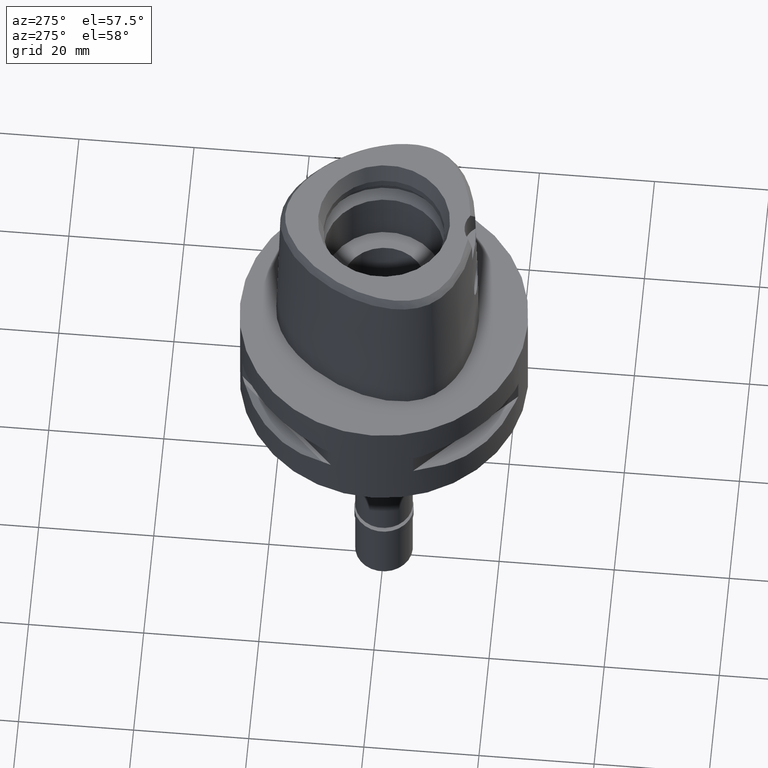
[diagram: clean part render]
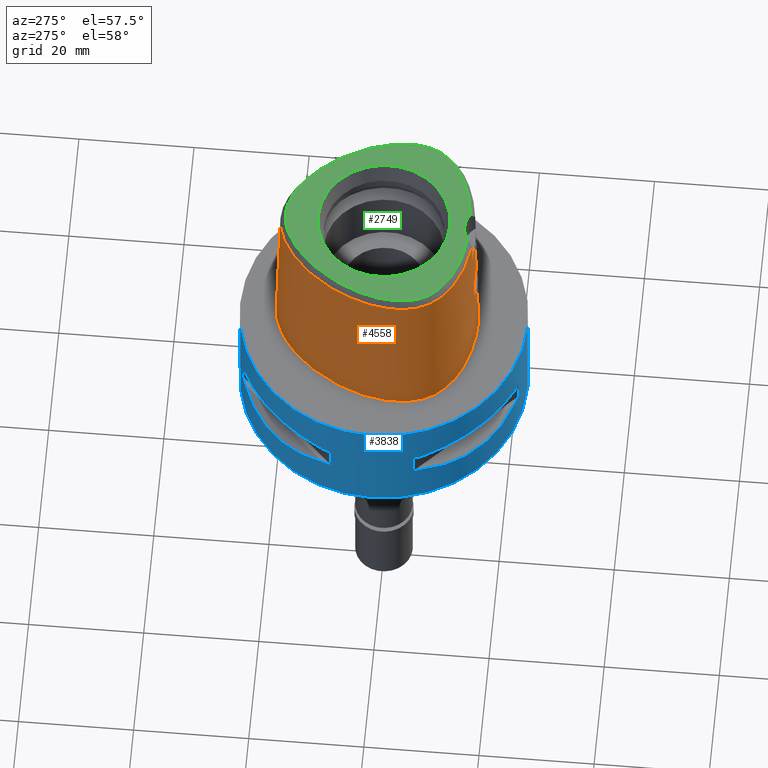
[diagram: same view with three faces highlighted in distinct colors, each labeled with its STEP entity id]
A machine part, auxiliary view with three faces highlighted in distinct colors.
Their STEP definitions:

[orange] entity #4558 — the highlighted face is a freeform B-spline surface patch.
#4 = CARTESIAN_POINT ( 'NONE',  ( -15.82879753292000125, 3.455165198276000105, 29.09114874948999940 ) ) ;
#9 = CARTESIAN_POINT ( 'NONE',  ( -14.78833380435851019, -11.28232910190142668, -1.982840703695226692E-08 ) ) ;
#22 = CARTESIAN_POINT ( 'NONE',  ( -0.4764648011924000337, 18.48199782509999878, 9.316773128920999625 ) ) ;
#42 = CARTESIAN_POINT ( 'NONE',  ( -16.84071408978999784, -5.352498116681000617, 29.09114874948999940 ) ) ;
#64 = CARTESIAN_POINT ( 'NONE',  ( -7.668807713540000570, 15.44980314531999888, 19.20396093919999814 ) ) ;
#71 = EDGE_CURVE ( 'NONE', #4054, #2116, #2703, .T. ) ;
#115 = CARTESIAN_POINT ( 'NONE',  ( -1.286803362648000215, -15.75925584039999983, 29.09114874948999940 ) ) ;
#148 = CARTESIAN_POINT ( 'NONE',  ( -0.6729281202612352741, -16.02259025627639843, 16.97651237904580768 ) ) ;
#159 = CARTESIAN_POINT ( 'NONE',  ( -4.965998101569000234, -15.68039695748000106, 19.20396093919999814 ) ) ;
#198 = CARTESIAN_POINT ( 'NONE',  ( -2.820449305715940991, -15.99150796465939273, 12.83914045378499225 ) ) ;
#215 = CARTESIAN_POINT ( 'NONE',  ( -10.91764528034956427, 11.98972044748041554, 28.52071192347002437 ) ) ;
#225 = CARTESIAN_POINT ( 'NONE',  ( -1.647720974870742650, -15.99226611569845247, 16.56665347346226724 ) ) ;
#230 = CARTESIAN_POINT ( 'NONE',  ( -7.967839664533697963, 15.83070312539078905, -1.982840703695226692E-08 ) ) ;
#232 = CARTESIAN_POINT ( 'NONE',  ( 6.797662629446558481E-08, -15.96503292052490686, 19.60000012629548394 ) ) ;
#241 = CARTESIAN_POINT ( 'NONE',  ( 0.5756361491339000436, 18.69183959969999975, -0.5704146813624999535 ) ) ;
#245 = CARTESIAN_POINT ( 'NONE',  ( -3.049900212868040583, -15.94261167837582605, 13.81468546120752272 ) ) ;
#260 = CARTESIAN_POINT ( 'NONE',  ( -16.99625270563425516, -3.273868231552701236, 28.52071192347002437 ) ) ;
#262 = EDGE_CURVE ( 'NONE', #3908, #1303, #2004, .T. ) ;
#269 = ORIENTED_EDGE ( 'NONE', *, *, #3835, .T. ) ;
#274 = CARTESIAN_POINT ( 'NONE',  ( -2.816407481551031822, -15.93333177460183236, 15.17063687596105659 ) ) ;
#299 = CARTESIAN_POINT ( 'NONE',  ( -2.589913444526261266, -16.02530027108240063, 12.38873572170438919 ) ) ;
#320 = CARTESIAN_POINT ( 'NONE',  ( -1.994661405231819451, -16.09284332352418545, 11.68121651172288011 ) ) ;
#325 = CARTESIAN_POINT ( 'NONE',  ( -13.50690093511327916, -12.48264648477287153, -1.982840703695226692E-08 ) ) ;
#340 = CARTESIAN_POINT ( 'NONE',  ( -16.22974813955999807, -8.250337659176999239, 19.20396093919999814 ) ) ;
#366 = CARTESIAN_POINT ( 'NONE',  ( -1.890839656870000107, 17.83402855694999900, 29.09114874948999940 ) ) ;
#382 = B_SPLINE_CURVE_WITH_KNOTS ( 'NONE', 3,
 ( #3839, #466, #3885, #148, #1965, #1657, #3514, #3139, #4644, #1278, #4275, #913, #934, #2452, #1754, #4034, #2880, #3191, #225, #2162, #4378, #1409, #2090, #666, #3567, #1706, #1010, #3214, #3960, #4746, #564, #1382, #1730, #2427, #4695, #4718, #3670, #2495, #1354, #274, #3238, #3289, #2064, #2853, #4352, #4007, #984, #3986, #245, #641, #2111, #2134, #3641, #3935, #3614, #1782, #1328, #2476, #198, #3265, #4768, #2827, #2901, #615, #299, #4398, #1033, #4792, #2524, #1805, #2802, #4325, #4299, #958, #591, #3590, #320, #1825, #693, #2552, #3690, #1434, #4060, #2185, #3314, #2926, #4427, #1062, #2408, #3842 ),
 .UNSPECIFIED., .F., .F.,
 ( 4, 2, 2, 1, 1, 1, 2, 2, 2, 2, 1, 2, 2, 2, 1, 1, 2, 2, 2, 2, 1, 1, 1, 2, 2, 2, 2, 2, 2, 2, 2, 1, 1, 1, 2, 2, 2, 2, 1, 2, 2, 2, 1, 1, 2, 2, 2, 2, 1, 1, 1, 2, 2, 4 ),
 ( 0.0000000000000000000, 0.06250000000001257328, 0.09375000000001874889, 0.1093750000000218436, 0.1171875000000235922, 0.1210937500000246053, 0.1230468750000253408, 0.1250000000000260625, 0.1562500000000369427, 0.1718750000000420775, 0.1796875000000446310, 0.1835937500000459077, 0.1875000000000471567, 0.2187500000000533185, 0.2343750000000560385, 0.2421875000000577594, 0.2460937500000586198, 0.2500000000000594524, 0.3125000000000707767, 0.3437500000000764389, 0.3593750000000792144, 0.3671875000000803246, 0.3710937500000808797, 0.3730468750000808242, 0.3750000000000807687, 0.4375000000000756617, 0.4687500000000731637, 0.4843750000000718869, 0.5000000000000706102, 0.5625000000000655032, 0.5937500000000627276, 0.6093750000000612843, 0.6171875000000606182, 0.6210937500000599520, 0.6230468750000597300, 0.6250000000000593969, 0.6562500000000583977, 0.6718750000000576206, 0.6796875000000570655, 0.6835937500000566214, 0.6875000000000561773, 0.7187500000000522915, 0.7343750000000504041, 0.7421875000000491829, 0.7460937500000486278, 0.7500000000000480727, 0.8125000000000393019, 0.8437500000000349720, 0.8593750000000325295, 0.8671875000000313083, 0.8710937500000306422, 0.8730468750000303091, 0.8750000000000298650, 1.000000000000000000 ),
 .UNSPECIFIED. ) ;
#386 = CARTESIAN_POINT ( 'NONE',  ( 2.030224829794000080E-07, -15.83752876601000281, 24.70000006102999990 ) ) ;
#388 = CARTESIAN_POINT ( 'NONE',  ( -2.043508292977000096, 18.56419796947000123, -0.5704146813624999535 ) ) ;
#402 = B_SPLINE_SURFACE_WITH_KNOTS ( 'NONE', 3, 3, ( 
 ( #241, #3234, #1874, #2200 ),
 ( #734, #4470, #1937, #801 ),
 ( #1107, #22, #3364, #1848 ),
 ( #388, #4077, #1154, #366 ),
 ( #1532, #3806, #2644, #2975 ),
 ( #3429, #4150, #64, #434 ),
 ( #2227, #4543, #1576, #3061 ),
 ( #779, #1914, #4125, #2302 ),
 ( #3708, #3406, #1128, #4 ),
 ( #4566, #409, #4837, #2593 ),
 ( #1508, #2993, #2276, #4100 ),
 ( #3016, #4519, #3779, #42 ),
 ( #1555, #2574, #3739, #3041 ),
 ( #710, #4492, #340, #1892 ),
 ( #3338, #1488, #2620, #759 ),
 ( #1173, #2664, #4170, #3384 ),
 ( #2255, #3762, #1601, #926 ),
 ( #4618, #2324, #1980, #1959 ),
 ( #3481, #3527, #2791, #830 ),
 ( #3086, #554, #3903, #1197 ),
 ( #3153, #4239, #159, #1224 ),
 ( #2418, #4596, #3506, #115 ),
 ( #3925, #3876, #2688, #4636 ),
 ( #2006, #1649, #855, #4659 ) ),
 .UNSPECIFIED., .F., .F., .F.,
 ( 4, 1, 1, 1, 1, 1, 1, 1, 1, 1, 1, 1, 1, 1, 1, 1, 1, 1, 1, 1, 1, 4 ),
 ( 4, 4 ),
 ( -0.01173812893910999855, 0.0000000000000000000, 0.04166666666846000067, 0.08333333333505001106, 0.1666666666683000175, 0.2500000000013999912, 0.3333333333346000238, 0.4166666666678000008, 0.5000000000009999779, 0.5416666666675999942, 0.5833333333340999793, 0.6250000000008000267, 0.6458333333340000593, 0.6666666666674000430, 0.6875000000005999645, 0.7083333333339000282, 0.7500000000005000445, 0.7916666666671999808, 0.8333333333336999660, 0.9166666666668999985, 1.000000000000000000, 1.017968513185000035 ),
 ( 2.071983796341999797E-09, 0.9999998943289000186 ),
 .UNSPECIFIED. ) ;
#409 = CARTESIAN_POINT ( 'NONE',  ( -17.26695537764999955, -0.2694874686292999533, 9.316773128920999625 ) ) ;
#434 = CARTESIAN_POINT ( 'NONE',  ( -7.514850669623000634, 15.25369622508999967, 29.09114874948999940 ) ) ;
#436 = B_SPLINE_CURVE_WITH_KNOTS ( 'NONE', 3,
 ( #1855, #4475, #3347, #716 ),
 .UNSPECIFIED., .F., .F.,
 ( 4, 4 ),
 ( 0.0000000000000000000, 1.000000000000000000 ),
 .UNSPECIFIED. ) ;
#466 = CARTESIAN_POINT ( 'NONE',  ( -0.1860095695891537393, -16.02877864023999166, 17.04999999999999716 ) ) ;
#514 = CARTESIAN_POINT ( 'NONE',  ( -2.866104152261000429E-11, 17.98202997909999823, 28.52071728569000086 ) ) ;
#554 = CARTESIAN_POINT ( 'NONE',  ( -8.866858740869000499, -14.81887820038000037, 9.316773128920999625 ) ) ;
#564 = CARTESIAN_POINT ( 'NONE',  ( -2.453157249243883342, -15.95160785209460919, 15.82331514068930822 ) ) ;
#591 = CARTESIAN_POINT ( 'NONE',  ( -2.174903967716026898, -16.07399873101336851, 11.86167149722171743 ) ) ;
#596 = ORIENTED_EDGE ( 'NONE', *, *, #923, .F. ) ;
#607 = CARTESIAN_POINT ( 'NONE',  ( -13.75951393052806004, 7.944084103042049705, 28.52071192347002437 ) ) ;
#615 = CARTESIAN_POINT ( 'NONE',  ( -2.611019405680786498, -16.02245593392139611, 12.42336243517980954 ) ) ;
#631 = CARTESIAN_POINT ( 'NONE',  ( -5.902447850708579580, -15.16907854011377310, 28.52071192347002437 ) ) ;
#634 = ORIENTED_EDGE ( 'NONE', *, *, #3077, .F. ) ;
#641 = CARTESIAN_POINT ( 'NONE',  ( -3.033174470079177620, -15.94941370605617159, 13.62317640955338938 ) ) ;
#657 = CARTESIAN_POINT ( 'NONE',  ( -16.79165457291889396, -0.3537785057482575879, 28.52071192347002437 ) ) ;
#666 = CARTESIAN_POINT ( 'NONE',  ( -1.974011923641829203, -15.97722169910675127, 16.32556985268866967 ) ) ;
#693 = CARTESIAN_POINT ( 'NONE',  ( -1.572520811367744908, -16.12649376600621665, 11.38472095010851248 ) ) ;
#697 = CARTESIAN_POINT ( 'NONE',  ( -8.946741556354840696, -15.03902343797448360, -1.982840703695226692E-08 ) ) ;
#710 = CARTESIAN_POINT ( 'NONE',  ( -16.68217932085000044, -8.451606616559001139, -0.5704146813624999535 ) ) ;
#716 = CARTESIAN_POINT ( 'NONE',  ( -3.235121119988999983, -15.64755630481999837, 24.69999999999999929 ) ) ;
#717 = CARTESIAN_POINT ( 'NONE',  ( -11.68694516608311673, -13.70394531293569074, -1.982840703695226692E-08 ) ) ;
#734 = CARTESIAN_POINT ( 'NONE',  ( 0.3838142946269000322, 18.70350312475000010, -0.5704146813624999535 ) ) ;
#759 = CARTESIAN_POINT ( 'NONE',  ( -15.57503089528999851, -8.992248278965998765, 29.09114874948999940 ) ) ;
#779 = CARTESIAN_POINT ( 'NONE',  ( -14.39249255186000021, 8.309508948501999726, -0.5704146813624999535 ) ) ;
#801 = CARTESIAN_POINT ( 'NONE',  ( 0.3539521785427999778, 17.96246305464999793, 29.09114874948999940 ) ) ;
#830 = CARTESIAN_POINT ( 'NONE',  ( -11.32630895852000208, -13.06981818799999928, 29.09114874948999940 ) ) ;
#855 = CARTESIAN_POINT ( 'NONE',  ( 1.070056060518999930, -15.95437367553000030, 19.20396093919999814 ) ) ;
#913 = CARTESIAN_POINT ( 'NONE',  ( -1.161963448143041200, -16.01037049747069929, 16.81999471490744824 ) ) ;
#920 = CARTESIAN_POINT ( 'NONE',  ( -3.168920966622999824, -15.55911077538999976, 28.52071192346999950 ) ) ;
#923 = EDGE_CURVE ( 'NONE', #2461, #3694, #382, .T. ) ;
#926 = CARTESIAN_POINT ( 'NONE',  ( -14.25868488853000038, -10.78027802323000017, 29.09114874948999940 ) ) ;
#934 = CARTESIAN_POINT ( 'NONE',  ( -1.246904710687278595, -16.00770134240468323, 16.78481881917274876 ) ) ;
#947 = CARTESIAN_POINT ( 'NONE',  ( -7.523733151594671931, 15.26501052509956757, 28.52071192347002437 ) ) ;
#958 = CARTESIAN_POINT ( 'NONE',  ( -2.192347023517017490, -16.07215629485219210, 11.87955887064578420 ) ) ;
#965 = CARTESIAN_POINT ( 'NONE',  ( -17.49754712356595121, -0.2285937499130027695, -1.982840703695226692E-08 ) ) ;
#972 = CARTESIAN_POINT ( 'NONE',  ( -8.702202515497370783, -14.36510996955825092, 28.52071192347002437 ) ) ;
#976 = VECTOR ( 'NONE', #3222, 1000.000000000000114 ) ;
#984 = CARTESIAN_POINT ( 'NONE',  ( -3.048918288824035372, -15.93569181003061708, 14.09458409078623653 ) ) ;
#1010 = CARTESIAN_POINT ( 'NONE',  ( -2.121841374835716110, -15.96962928976706309, 16.19099185722725309 ) ) ;
#1017 = CARTESIAN_POINT ( 'NONE',  ( 2.030224829794000080E-07, -15.83752876601000281, 24.70000006102999990 ) ) ;
#1033 = CARTESIAN_POINT ( 'NONE',  ( -2.552453281223320936, -16.03022206925511384, 12.33036638904223814 ) ) ;
#1062 = CARTESIAN_POINT ( 'NONE',  ( -0.7803301224163371463, -16.17127761896325921, 11.02218832487901956 ) ) ;
#1076 = CARTESIAN_POINT ( 'NONE',  ( 0.0000000000000000000, -16.02877864023999877, 17.05000000000000071 ) ) ;
#1107 = CARTESIAN_POINT ( 'NONE',  ( -0.4893119563345998957, 18.72969240741999997, -0.5704146813624999535 ) ) ;
#1114 = CARTESIAN_POINT ( 'NONE',  ( -3.168920966622999824, -15.55911077538999976, 28.52071192346999950 ) ) ;
#1128 = CARTESIAN_POINT ( 'NONE',  ( -16.06260405039999739, 3.539545326965999550, 19.20396093919999814 ) ) ;
#1154 = CARTESIAN_POINT ( 'NONE',  ( -1.941729202239000029, 18.07741836111999945, 19.20396093919999814 ) ) ;
#1173 = CARTESIAN_POINT ( 'NONE',  ( -15.66039569329999814, -10.22138777406999921, -0.5704146813624999535 ) ) ;
#1197 = CARTESIAN_POINT ( 'NONE',  ( -8.697311541016000902, -14.35163116648000070, 29.09114874948999940 ) ) ;
#1224 = CARTESIAN_POINT ( 'NONE',  ( -4.922186780458999600, -15.43572509400000037, 29.09114874948999940 ) ) ;
#1278 = CARTESIAN_POINT ( 'NONE',  ( -1.142332392165549493, -16.01097948216497713, 16.82800652385463636 ) ) ;
#1290 = CARTESIAN_POINT ( 'NONE',  ( -2.866104152261000429E-11, 17.98202997909999823, 28.52071728569000086 ) ) ;
#1303 = VERTEX_POINT ( 'NONE', #2173 ) ;
#1318 = CARTESIAN_POINT ( 'NONE',  ( -16.01658395503302046, -8.155509241189420777, 28.52071192347002437 ) ) ;
#1328 = CARTESIAN_POINT ( 'NONE',  ( -2.828519626698094314, -15.99018834924776833, 12.85893844538407649 ) ) ;
#1333 = CARTESIAN_POINT ( 'NONE',  ( -0.6801907858937550344, 18.69500000049650268, -1.982840703695226692E-08 ) ) ;
#1349 = FACE_OUTER_BOUND ( 'NONE', #3235, .T. ) ;
#1354 = CARTESIAN_POINT ( 'NONE',  ( -2.814800487489022451, -15.93339868692384265, 15.17448999603935178 ) ) ;
#1360 = CARTESIAN_POINT ( 'NONE',  ( -16.20602472007142936, -9.356552734622480827, -1.982840703695226692E-08 ) ) ;
#1382 = CARTESIAN_POINT ( 'NONE',  ( -2.615901618694458364, -15.94298692150383800, 15.57147967510174880 ) ) ;
#1392 = CARTESIAN_POINT ( 'NONE',  ( 0.0000000000000000000, -16.02877864023999877, 17.05000000000000071 ) ) ;
#1409 = CARTESIAN_POINT ( 'NONE',  ( -1.777739861705566193, -15.98655714082981127, 16.48034954023966492 ) ) ;
#1415 = CARTESIAN_POINT ( 'NONE',  ( -16.51672824827198482, 3.703437500169664442, -1.982840703695226692E-08 ) ) ;
#1424 = CARTESIAN_POINT ( 'NONE',  ( -4.422474562382011420, 17.08283562090220187, 28.52071192347002437 ) ) ;
#1434 = CARTESIAN_POINT ( 'NONE',  ( -1.304824586065963521, -16.14367980511032385, 11.24258093298036343 ) ) ;
#1488 = CARTESIAN_POINT ( 'NONE',  ( -16.00394173013999932, -9.239880065649000329, 9.316773128920999625 ) ) ;
#1508 = CARTESIAN_POINT ( 'NONE',  ( -17.72574105972000069, -3.269125760296999861, -0.5704146813624999535 ) ) ;
#1515 = CARTESIAN_POINT ( 'NONE',  ( -5.051093167660918759, -16.15562500048915240, -1.982840703695226692E-08 ) ) ;
#1532 = CARTESIAN_POINT ( 'NONE',  ( -4.735056264464001075, 17.74784407896000005, -0.5704146813624999535 ) ) ;
#1555 = CARTESIAN_POINT ( 'NONE',  ( -17.17866842890000001, -7.169980044491000015, -0.5704146813624999535 ) ) ;
#1576 = CARTESIAN_POINT ( 'NONE',  ( -11.09665499515999798, 12.14079277619000052, 19.20396093919999814 ) ) ;
#1601 = CARTESIAN_POINT ( 'NONE',  ( -14.43869628462999977, -10.95090976227000112, 19.20396093919999814 ) ) ;
#1649 = CARTESIAN_POINT ( 'NONE',  ( 1.079551361388999986, -16.20136644713999985, 9.316773128920999625 ) ) ;
#1657 = CARTESIAN_POINT ( 'NONE',  ( -0.9200171648280662806, -16.01717542030823083, 16.90838961258444328 ) ) ;
#1706 = CARTESIAN_POINT ( 'NONE',  ( -2.094858927816013683, -15.97106233740291259, 16.21701581232883527 ) ) ;
#1730 = CARTESIAN_POINT ( 'NONE',  ( -2.663989615078775852, -15.94049756288810471, 15.48802251322130630 ) ) ;
#1734 = CARTESIAN_POINT ( 'NONE',  ( -14.38008119732740120, 8.302343750248592613, -1.982840703695226692E-08 ) ) ;
#1743 = EDGE_CURVE ( 'NONE', #3694, #2116, #3268, .T. ) ;
#1745 = CARTESIAN_POINT ( 'NONE',  ( -3.091530735616000307E-12, -16.18126839358999902, 10.94999999999999929 ) ) ;
#1754 = CARTESIAN_POINT ( 'NONE',  ( -1.464230115295340973, -15.99978155752990538, 16.67600899017843119 ) ) ;
#1767 = CARTESIAN_POINT ( 'NONE',  ( -15.07117015428458906, -9.793013966485382582, 28.52071192347002437 ) ) ;
#1774 = ORIENTED_EDGE ( 'NONE', *, *, #71, .T. ) ;
#1782 = CARTESIAN_POINT ( 'NONE',  ( -2.835998777458668574, -15.98895818849806183, 12.87753709205216168 ) ) ;
#1795 = CARTESIAN_POINT ( 'NONE',  ( -3.738627773282929834, -15.49270868799686163, 28.52071192347002793 ) ) ;
#1805 = CARTESIAN_POINT ( 'NONE',  ( -2.421847348362509589, -16.04659734725418829, 12.14335169878023102 ) ) ;
#1825 = CARTESIAN_POINT ( 'NONE',  ( -1.824495776585852047, -16.10763072133376639, 11.54770719424364955 ) ) ;
#1848 = CARTESIAN_POINT ( 'NONE',  ( -0.4507704909081000078, 17.98660866045999995, 29.09114874948999940 ) ) ;
#1855 = CARTESIAN_POINT ( 'NONE',  ( 2.030224829794000080E-07, -15.83752876601000281, 24.70000006102999990 ) ) ;
#1868 = EDGE_CURVE ( 'NONE', #3223, #1303, #436, .T. ) ;
#1874 = CARTESIAN_POINT ( 'NONE',  ( 0.5455910012715000645, 18.19844124154999676, 19.20396093919999814 ) ) ;
#1892 = CARTESIAN_POINT ( 'NONE',  ( -16.00353254891000176, -8.149703180486000065, 29.09114874948999940 ) ) ;
#1903 = B_SPLINE_CURVE_WITH_KNOTS ( 'NONE', 3,
 ( #1017, #2933, #232, #1392 ),
 .UNSPECIFIED., .F., .F.,
 ( 4, 4 ),
 ( 0.0000000000000000000, 1.000000000000000000 ),
 .UNSPECIFIED. ) ;
#1914 = CARTESIAN_POINT ( 'NONE',  ( -14.17736239915000063, 8.185312174458999834, 9.316773128920999625 ) ) ;
#1937 = CARTESIAN_POINT ( 'NONE',  ( 0.3639062172374999959, 18.20947641134999984, 19.20396093919999814 ) ) ;
#1959 = CARTESIAN_POINT ( 'NONE',  ( -13.05575607446000141, -11.90823715035000063, 29.09114874948999940 ) ) ;
#1965 = CARTESIAN_POINT ( 'NONE',  ( -0.7716804096326577156, -16.02065638628776512, 16.95256773572744535 ) ) ;
#1980 = CARTESIAN_POINT ( 'NONE',  ( -13.20908635378999918, -12.10346123773000038, 19.20396093919999814 ) ) ;
#2004 = B_SPLINE_CURVE_WITH_KNOTS ( 'NONE', 3,
 ( #1114, #2350, #3856, #4274 ),
 .UNSPECIFIED., .F., .F.,
 ( 4, 4 ),
 ( 0.0000000000000000000, 1.000000000000000000 ),
 .UNSPECIFIED. ) ;
#2006 = CARTESIAN_POINT ( 'NONE',  ( 1.089046662257999953, -16.44835921876000029, -0.5704146813624999535 ) ) ;
#2064 = CARTESIAN_POINT ( 'NONE',  ( -3.012997481774254194, -15.92993551890234727, 14.48403558617126663 ) ) ;
#2078 = CARTESIAN_POINT ( 'NONE',  ( -16.85489160761079930, -5.354527567564733914, 28.52071192347002437 ) ) ;
#2090 = CARTESIAN_POINT ( 'NONE',  ( -1.858121229638787231, -15.98284882596964707, 16.42071856142420572 ) ) ;
#2097 = CARTESIAN_POINT ( 'NONE',  ( -17.16495051828108132, -7.165908203266101673, -1.982840703695226692E-08 ) ) ;
#2111 = CARTESIAN_POINT ( 'NONE',  ( -2.977125115133987698, -15.96287852150346787, 13.32982323607668107 ) ) ;
#2116 = VERTEX_POINT ( 'NONE', #2402 ) ;
#2134 = CARTESIAN_POINT ( 'NONE',  ( -2.953287761239812514, -15.96791042230702473, 13.23104891048737741 ) ) ;
#2162 = CARTESIAN_POINT ( 'NONE',  ( -1.671121799475667968, -15.99125384014664775, 16.55147925627116834 ) ) ;
#2173 = CARTESIAN_POINT ( 'NONE',  ( -3.235121119988999983, -15.64755630481999837, 24.69999999999999929 ) ) ;
#2185 = CARTESIAN_POINT ( 'NONE',  ( -1.200046882047371088, -16.14948273154543656, 11.19596910874573226 ) ) ;
#2200 = CARTESIAN_POINT ( 'NONE',  ( 0.5305684273401999329, 17.95174206248000104, 29.09114874948999940 ) ) ;
#2227 = CARTESIAN_POINT ( 'NONE',  ( -11.47659488473999900, 12.46143684822999909, -0.5704146813624999535 ) ) ;
#2255 = CARTESIAN_POINT ( 'NONE',  ( -14.79871907685000032, -11.29217324034999947, -0.5704146813624999535 ) ) ;
#2273 = ORIENTED_EDGE ( 'NONE', *, *, #262, .F. ) ;
#2276 = CARTESIAN_POINT ( 'NONE',  ( -17.22987931739000089, -3.272349403343000063, 19.20396093919999814 ) ) ;
#2302 = CARTESIAN_POINT ( 'NONE',  ( -13.74710209372999969, 7.936918626372000851, 29.09114874948999940 ) ) ;
#2324 = CARTESIAN_POINT ( 'NONE',  ( -13.36241663312000050, -12.29868532511000012, 9.316773128920999625 ) ) ;
#2350 = CARTESIAN_POINT ( 'NONE',  ( -3.191384176940533557, -15.58827403572775339, 27.24714128231333277 ) ) ;
#2402 = CARTESIAN_POINT ( 'NONE',  ( -2.483613896260000024E-11, -16.45500000000000185, 2.032078209405999923E-13 ) ) ;
#2408 = CARTESIAN_POINT ( 'NONE',  ( -0.3804472261490731144, -16.18126839358999547, 10.94999999999999751 ) ) ;
#2418 = CARTESIAN_POINT ( 'NONE',  ( -1.321318947046000059, -16.50155084576000064, -0.5704146813624999535 ) ) ;
#2427 = CARTESIAN_POINT ( 'NONE',  ( -2.727932080404931625, -15.93733995233630196, 15.36492654819696391 ) ) ;
#2437 = CARTESIAN_POINT ( 'NONE',  ( -2.866104152261000429E-11, 17.98202997909999823, 28.52071728569000086 ) ) ;
#2452 = CARTESIAN_POINT ( 'NONE',  ( -1.331640452534565089, -16.00477934145681047, 16.74576209628363088 ) ) ;
#2461 = VERTEX_POINT ( 'NONE', #1076 ) ;
#2466 = CARTESIAN_POINT ( 'NONE',  ( -14.26907056455933187, -10.79012254419024330, 28.52071192347002437 ) ) ;
#2476 = CARTESIAN_POINT ( 'NONE',  ( -2.823487070365361618, -15.99101270351569681, 12.84654193248369047 ) ) ;
#2481 = DIRECTION ( 'NONE',  ( -1.985188779248950183E-12, -0.02499051295371941192, -0.9996876883618752707 ) ) ;
#2495 = CARTESIAN_POINT ( 'NONE',  ( -2.810669180506640608, -15.93357175435965090, 15.18434255725068383 ) ) ;
#2524 = CARTESIAN_POINT ( 'NONE',  ( -2.481413756882850485, -16.03938740154340437, 12.22374741087844718 ) ) ;
#2552 = CARTESIAN_POINT ( 'NONE',  ( -1.489022098419276796, -16.13222843889004565, 11.33656707562941968 ) ) ;
#2574 = CARTESIAN_POINT ( 'NONE',  ( -16.94089130323999726, -7.099401460805999875, 9.316773128920999625 ) ) ;
#2584 = CARTESIAN_POINT ( 'NONE',  ( 9.149211217302000188E-11, 18.69499999997999851, 2.020235830475999669E-13 ) ) ;
#2593 = CARTESIAN_POINT ( 'NONE',  ( -16.77753616286999616, -0.3562823000058000233, 29.09114874948999940 ) ) ;
#2620 = CARTESIAN_POINT ( 'NONE',  ( -15.78948631270999847, -9.116064172307998703, 19.20396093919999814 ) ) ;
#2644 = CARTESIAN_POINT ( 'NONE',  ( -4.522582266016000219, 17.29581184180999998, 19.20396093919999814 ) ) ;
#2664 = CARTESIAN_POINT ( 'NONE',  ( -15.46013588053999932, -10.07579656523999923, 9.316773128920999625 ) ) ;
#2688 = CARTESIAN_POINT ( 'NONE',  ( 0.7138086209870000420, -15.96808630987000122, 19.20396093919999814 ) ) ;
#2703 = B_SPLINE_CURVE_WITH_KNOTS ( 'NONE', 3,
 ( #4699, #1333, #2831, #3596, #230, #4382, #1734, #1415, #965, #4401, #3966, #2097, #4723, #1360, #2857, #9, #325, #717, #697, #1515, #3001, #4504 ),
 .UNSPECIFIED., .F., .F.,
 ( 4, 1, 1, 1, 1, 1, 1, 1, 1, 1, 1, 1, 1, 1, 1, 1, 1, 1, 1, 4 ),
 ( 0.0000000000000000000, 0.04166666666846000067, 0.08333333333505001106, 0.1666666666683000175, 0.2500000000013999912, 0.3333333333346000238, 0.4166666666678000008, 0.5000000000009999779, 0.5416666666675999942, 0.5833333333340999793, 0.6250000000008000267, 0.6458333333340000593, 0.6666666666674000430, 0.6875000000005999645, 0.7083333333339000282, 0.7500000000005000445, 0.7916666666671999808, 0.8333333333336999660, 0.9166666666668999985, 1.000000000000000000 ),
 .UNSPECIFIED. ) ;
#2777 = ORIENTED_EDGE ( 'NONE', *, *, #1868, .T. ) ;
#2791 = CARTESIAN_POINT ( 'NONE',  ( -11.44887812702000041, -13.28533851789999964, 19.20396093919999814 ) ) ;
#2802 = CARTESIAN_POINT ( 'NONE',  ( -2.326795673539356013, -16.05749942887523574, 12.02743345691540355 ) ) ;
#2827 = CARTESIAN_POINT ( 'NONE',  ( -2.676760126935361583, -16.01335860443708015, 12.53714519679416917 ) ) ;
#2831 = CARTESIAN_POINT ( 'NONE',  ( -2.040572357769307565, 18.55015625048620009, -1.982840703695226692E-08 ) ) ;
#2844 = ORIENTED_EDGE ( 'NONE', *, *, #3691, .T. ) ;
#2853 = CARTESIAN_POINT ( 'NONE',  ( -3.027041479268463231, -15.93083733890005682, 14.38613028389027981 ) ) ;
#2857 = CARTESIAN_POINT ( 'NONE',  ( -15.64884224296545945, -10.21298828154486316, -1.982840703695226692E-08 ) ) ;
#2880 = CARTESIAN_POINT ( 'NONE',  ( -1.578081282703815091, -15.99520688258742851, 16.61014732801110583 ) ) ;
#2901 = CARTESIAN_POINT ( 'NONE',  ( -2.651693848328784409, -16.01689519106128046, 12.49206992028460661 ) ) ;
#2920 = ORIENTED_EDGE ( 'NONE', *, *, #1743, .F. ) ;
#2926 = CARTESIAN_POINT ( 'NONE',  ( -1.175386497639693939, -16.15078445366179594, 11.18557374674743343 ) ) ;
#2933 = CARTESIAN_POINT ( 'NONE',  ( 6.782141396552030816E-08, -15.90128720080548952, 22.15000025259084637 ) ) ;
#2975 = CARTESIAN_POINT ( 'NONE',  ( -4.416345266792000679, 17.06979572322999772, 29.09114874948999940 ) ) ;
#2993 = CARTESIAN_POINT ( 'NONE',  ( -17.47781018855999946, -3.270737581819999740, 9.316773128920999625 ) ) ;
#3001 = CARTESIAN_POINT ( 'NONE',  ( -1.683697722558102461, -16.45500000049712597, -1.982840703695226692E-08 ) ) ;
#3016 = CARTESIAN_POINT ( 'NONE',  ( -17.57791639677000006, -5.458025465849000391, -0.5704146813624999535 ) ) ;
#3041 = CARTESIAN_POINT ( 'NONE',  ( -16.46533705191999886, -6.958244293435999595, 29.09114874948999940 ) ) ;
#3061 = CARTESIAN_POINT ( 'NONE',  ( -10.90668505036000013, 11.98047074017000035, 29.09114874948999940 ) ) ;
#3077 = EDGE_CURVE ( 'NONE', #3223, #2461, #1903, .T. ) ;
#3086 = CARTESIAN_POINT ( 'NONE',  ( -8.951632340795999454, -15.05250171732999931, -0.5704146813624999535 ) ) ;
#3139 = CARTESIAN_POINT ( 'NONE',  ( -1.080687980687604854, -16.01283629952125054, 16.85233897233315048 ) ) ;
#3153 = CARTESIAN_POINT ( 'NONE',  ( -5.053620743790999015, -16.16974068442999979, -0.5704146813624999535 ) ) ;
#3191 = CARTESIAN_POINT ( 'NONE',  ( -1.612726137497974221, -15.99376531707286020, 16.58900383221053687 ) ) ;
#3214 = CARTESIAN_POINT ( 'NONE',  ( -2.139722381399849382, -15.96867257770622217, 16.17353267031746711 ) ) ;
#3222 = DIRECTION ( 'NONE',  ( 4.211522005722894057E-12, 0.02499051285773934081, -0.9996876883642746847 ) ) ;
#3223 = VERTEX_POINT ( 'NONE', #386 ) ;
#3226 = CARTESIAN_POINT ( 'NONE',  ( -15.58740380354088195, -8.999391780896379700, 28.52071192347002437 ) ) ;
#3234 = CARTESIAN_POINT ( 'NONE',  ( 0.5606135752027000541, 18.44514042062999692, 9.316773128920999625 ) ) ;
#3235 = EDGE_LOOP ( 'NONE', ( #2920, #596, #634, #2777, #2273, #2844, #269, #1774 ) ) ;
#3238 = CARTESIAN_POINT ( 'NONE',  ( -2.897875851387718527, -15.92997726602834341, 14.97345579578013997 ) ) ;
#3265 = CARTESIAN_POINT ( 'NONE',  ( -2.785351805582557017, -15.99721084885888445, 12.75429401941662277 ) ) ;
#3268 = LINE ( 'NONE', #4328, #4737 ) ;
#3279 = CARTESIAN_POINT ( 'NONE',  ( -0.6295828121030307978, 17.98203011041632848, 28.52071192347002437 ) ) ;
#3289 = CARTESIAN_POINT ( 'NONE',  ( -2.955918695227826909, -15.92874700794739695, 14.77770287554773709 ) ) ;
#3314 = CARTESIAN_POINT ( 'NONE',  ( -1.185240961617869182, -16.15026635704341729, 11.18970954939990214 ) ) ;
#3338 = CARTESIAN_POINT ( 'NONE',  ( -16.21839714757000195, -9.363695958990000179, -0.5704146813624999535 ) ) ;
#3347 = CARTESIAN_POINT ( 'NONE',  ( -2.169052023958014885, -15.77399788493401900, 24.70000016923097874 ) ) ;
#3364 = CARTESIAN_POINT ( 'NONE',  ( -0.4636176460502999808, 18.23430324277999759, 19.20396093919999814 ) ) ;
#3384 = CARTESIAN_POINT ( 'NONE',  ( -15.05961625501999990, -9.784614147582999522, 29.09114874948999940 ) ) ;
#3406 = CARTESIAN_POINT ( 'NONE',  ( -16.29641056786999798, 3.623925455656999972, 9.316773128920999625 ) ) ;
#3429 = CARTESIAN_POINT ( 'NONE',  ( -7.976721801373999554, 15.84201698578000261, -0.5704146813624999535 ) ) ;
#3481 = CARTESIAN_POINT ( 'NONE',  ( -11.69401646401999884, -13.71637917768999948, -0.5704146813624999535 ) ) ;
#3506 = CARTESIAN_POINT ( 'NONE',  ( -1.298308557447999778, -16.00668750884999980, 19.20396093919999814 ) ) ;
#3514 = CARTESIAN_POINT ( 'NONE',  ( -0.9942354941246662747, -16.01528989706931938, 16.88423654522987860 ) ) ;
#3527 = CARTESIAN_POINT ( 'NONE',  ( -11.57144729551999873, -13.50085884778999912, 9.316773128920999625 ) ) ;
#3567 = CARTESIAN_POINT ( 'NONE',  ( -2.030787586190756056, -15.97439197203214611, 16.27657083949468131 ) ) ;
#3590 = CARTESIAN_POINT ( 'NONE',  ( -2.167461438340668511, -16.07478142648848518, 11.85411610869220667 ) ) ;
#3596 = CARTESIAN_POINT ( 'NONE',  ( -4.728927207029518520, 17.73480468795674270, -1.982840703695226692E-08 ) ) ;
#3614 = CARTESIAN_POINT ( 'NONE',  ( -2.852964108057065129, -15.98613240798082913, 12.92095709857100339 ) ) ;
#3628 = CARTESIAN_POINT ( 'NONE',  ( -16.47905549557295757, -6.962316292879598301, 28.52071192347002437 ) ) ;
#3641 = CARTESIAN_POINT ( 'NONE',  ( -2.909137552899625945, -15.97627371699405430, 13.08234413149750885 ) ) ;
#3651 = LINE ( 'NONE', #1290, #976 ) ;
#3670 = CARTESIAN_POINT ( 'NONE',  ( -2.804416461968547214, -15.93383585885219844, 15.19914549896493838 ) ) ;
#3690 = CARTESIAN_POINT ( 'NONE',  ( -1.365876440252946633, -16.14000093520530399, 11.27254294479042507 ) ) ;
#3691 = EDGE_CURVE ( 'NONE', #3908, #4296, #4027, .T. ) ;
#3694 = VERTEX_POINT ( 'NONE', #1745 ) ;
#3708 = CARTESIAN_POINT ( 'NONE',  ( -16.53021708534999945, 3.708305584347999950, -0.5704146813624999535 ) ) ;
#3739 = CARTESIAN_POINT ( 'NONE',  ( -16.70311417758000161, -7.028822877120999735, 19.20396093919999814 ) ) ;
#3762 = CARTESIAN_POINT ( 'NONE',  ( -14.61870768074000004, -11.12154150131000030, 9.316773128920999625 ) ) ;
#3779 = CARTESIAN_POINT ( 'NONE',  ( -17.08644819211999888, -5.387673899736999950, 19.20396093919999814 ) ) ;
#3806 = CARTESIAN_POINT ( 'NONE',  ( -4.628819265240000647, 17.52182796038000134, 9.316773128920999625 ) ) ;
#3835 = EDGE_CURVE ( 'NONE', #4296, #4054, #3651, .T. ) ;
#3839 = CARTESIAN_POINT ( 'NONE',  ( 0.0000000000000000000, -16.02877864023999877, 17.05000000000000071 ) ) ;
#3842 = CARTESIAN_POINT ( 'NONE',  ( -3.091530735616000307E-12, -16.18126839358999902, 10.94999999999999929 ) ) ;
#3856 = CARTESIAN_POINT ( 'NONE',  ( -3.213444811939455636, -15.61774738279276953, 25.97357064115666603 ) ) ;
#3876 = CARTESIAN_POINT ( 'NONE',  ( 0.7201291707619998927, -16.21519148470999738, 9.316773128920999625 ) ) ;
#3885 = CARTESIAN_POINT ( 'NONE',  ( -0.3789226270081169634, -16.02723154424909779, 17.03294418566286339 ) ) ;
#3903 = CARTESIAN_POINT ( 'NONE',  ( -8.782085140942998081, -14.58525468342999964, 19.20396093919999814 ) ) ;
#3908 = VERTEX_POINT ( 'NONE', #920 ) ;
#3925 = CARTESIAN_POINT ( 'NONE',  ( 0.7264497205369000454, -16.46229665954999888, -0.5704146813624999535 ) ) ;
#3935 = CARTESIAN_POINT ( 'NONE',  ( -2.884965141857559701, -15.98065922520799909, 13.00785839096715613 ) ) ;
#3960 = CARTESIAN_POINT ( 'NONE',  ( -2.147290074988020603, -15.96826519308855019, 16.16606823402931070 ) ) ;
#3966 = CARTESIAN_POINT ( 'NONE',  ( -17.56373942982126124, -5.455996093820160375, -1.982840703695226692E-08 ) ) ;
#3986 = CARTESIAN_POINT ( 'NONE',  ( -3.050024389103566325, -15.93682728871436893, 14.04426652284395693 ) ) ;
#4007 = CARTESIAN_POINT ( 'NONE',  ( -3.044373801969535442, -15.93377869067411723, 14.19140803545593421 ) ) ;
#4027 = B_SPLINE_CURVE_WITH_KNOTS ( 'NONE', 3,
 ( #4707, #1795, #631, #972, #4760, #4685, #2466, #1767, #3226, #1318, #3628, #2078, #260, #657, #4734, #607, #215, #947, #1424, #4389, #3279, #2437 ),
 .UNSPECIFIED., .F., .F.,
 ( 4, 1, 1, 1, 1, 1, 1, 1, 1, 1, 1, 1, 1, 1, 1, 1, 1, 1, 1, 4 ),
 ( 0.0000000000000000000, 0.03108635432774930346, 0.1191694130250633143, 0.1632109423736145815, 0.2072524717223772073, 0.2512940010710342231, 0.2733147657453627866, 0.2953355304195854902, 0.3173562950940196914, 0.3393770597682425061, 0.3834185891170052707, 0.4274601184655565378, 0.4715016478142135536, 0.5595847065115274743, 0.6476677652088415060, 0.7357508239061554267, 0.8238338826033637652, 0.9119169413007305325, 0.9559584706493770012, 1.000000000000000000 ),
 .UNSPECIFIED. ) ;
#4034 = CARTESIAN_POINT ( 'NONE',  ( -1.509334869930127887, -15.99801316580342814, 16.65089544972779478 ) ) ;
#4054 = VERTEX_POINT ( 'NONE', #2584 ) ;
#4060 = CARTESIAN_POINT ( 'NONE',  ( -1.234760267101668862, -16.14760890805742477, 11.21096960602431913 ) ) ;
#4077 = CARTESIAN_POINT ( 'NONE',  ( -1.992618747608000174, 18.32080816528999989, 9.316773128920999625 ) ) ;
#4100 = CARTESIAN_POINT ( 'NONE',  ( -16.98194844622999611, -3.273961224865999942, 29.09114874948999940 ) ) ;
#4125 = CARTESIAN_POINT ( 'NONE',  ( -13.96223224643999927, 8.061115400414999854, 19.20396093919999814 ) ) ;
#4150 = CARTESIAN_POINT ( 'NONE',  ( -7.822764757457001394, 15.64591006555000163, 9.316773128920999625 ) ) ;
#4170 = CARTESIAN_POINT ( 'NONE',  ( -15.25987606778000050, -9.930205356411001105, 19.20396093919999814 ) ) ;
#4239 = CARTESIAN_POINT ( 'NONE',  ( -5.009809422680000068, -15.92506882094999909, 9.316773128920999625 ) ) ;
#4274 = CARTESIAN_POINT ( 'NONE',  ( -3.235121119988999983, -15.64755630481999837, 24.69999999999999929 ) ) ;
#4275 = CARTESIAN_POINT ( 'NONE',  ( -1.154649350552922948, -16.01059875151096890, 16.82300001247303456 ) ) ;
#4296 = VERTEX_POINT ( 'NONE', #514 ) ;
#4299 = CARTESIAN_POINT ( 'NONE',  ( -2.218346767529178809, -16.06939536445589667, 11.90655067609835527 ) ) ;
#4325 = CARTESIAN_POINT ( 'NONE',  ( -2.277845221344409588, -16.06297226044945958, 11.97064251377653044 ) ) ;
#4328 = CARTESIAN_POINT ( 'NONE',  ( -3.091530735616000307E-12, -16.18126839358999902, 10.94999999999999929 ) ) ;
#4352 = CARTESIAN_POINT ( 'NONE',  ( -3.040936525959271997, -15.93294854341571742, 14.23999838212788838 ) ) ;
#4378 = CARTESIAN_POINT ( 'NONE',  ( -1.684236301195920271, -15.99068050411803554, 16.54283389550613492 ) ) ;
#4382 = CARTESIAN_POINT ( 'NONE',  ( -11.46563508061386294, 12.45218750031959765, -1.982840703695226692E-08 ) ) ;
#4389 = CARTESIAN_POINT ( 'NONE',  ( -1.893775706187208918, 17.84807082154081215, 28.52071192347002437 ) ) ;
#4398 = CARTESIAN_POINT ( 'NONE',  ( -2.567601606276564752, -16.02824055683983673, 12.35375696231888831 ) ) ;
#4401 = CARTESIAN_POINT ( 'NONE',  ( -17.71143735611182279, -3.269218749997017781, -1.982840703695226692E-08 ) ) ;
#4427 = CARTESIAN_POINT ( 'NONE',  ( -1.171575576434862320, -16.15098385800270719, 11.18398276020155890 ) ) ;
#4470 = CARTESIAN_POINT ( 'NONE',  ( 0.3738602559322000141, 18.45648976805000174, 9.316773128920999625 ) ) ;
#4475 = CARTESIAN_POINT ( 'NONE',  ( -1.084489118008861830, -15.83754148632408487, 24.70000016923097519 ) ) ;
#4492 = CARTESIAN_POINT ( 'NONE',  ( -16.45596373020999792, -8.350972137868000189, 9.316773128920999625 ) ) ;
#4504 = CARTESIAN_POINT ( 'NONE',  ( -2.483613896260000024E-11, -16.45500000000000185, 2.032078209405999923E-13 ) ) ;
#4519 = CARTESIAN_POINT ( 'NONE',  ( -17.33218229444999992, -5.422849682793000170, 9.316773128920999625 ) ) ;
#4543 = CARTESIAN_POINT ( 'NONE',  ( -11.28662493994999849, 12.30111481220999892, 9.316773128920999625 ) ) ;
#4558 = ADVANCED_FACE ( 'NONE', ( #1349 ), #402, .T. ) ;
#4566 = CARTESIAN_POINT ( 'NONE',  ( -17.51166498503999946, -0.2260900529411000170, -0.5704146813624999535 ) ) ;
#4596 = CARTESIAN_POINT ( 'NONE',  ( -1.309813752246999918, -16.25411917730000155, 9.316773128920999625 ) ) ;
#4618 = CARTESIAN_POINT ( 'NONE',  ( -13.51574691245999915, -12.49390941250000076, -0.5704146813624999535 ) ) ;
#4636 = CARTESIAN_POINT ( 'NONE',  ( 0.7074880712121000004, -15.72098113501999705, 29.09114874948999940 ) ) ;
#4644 = CARTESIAN_POINT ( 'NONE',  ( -1.123850819245109767, -16.01154604563820882, 16.83544840130055320 ) ) ;
#4659 = CARTESIAN_POINT ( 'NONE',  ( 1.060560759649000095, -15.70738090391000163, 29.09114874948999940 ) ) ;
#4685 = CARTESIAN_POINT ( 'NONE',  ( -13.06460239553248392, -11.91950051571783398, 28.52071192347002437 ) ) ;
#4695 = CARTESIAN_POINT ( 'NONE',  ( -2.757857542921389182, -15.93590525390334989, 15.30389640928843065 ) ) ;
#4699 = CARTESIAN_POINT ( 'NONE',  ( 9.149211217302000188E-11, 18.69499999997999851, 2.020235830475999669E-13 ) ) ;
#4707 = CARTESIAN_POINT ( 'NONE',  ( -3.168920966622999824, -15.55911077538999976, 28.52071192346999950 ) ) ;
#4718 = CARTESIAN_POINT ( 'NONE',  ( -2.789432624428044516, -15.93448362604004842, 15.23385107220369861 ) ) ;
#4723 = CARTESIAN_POINT ( 'NONE',  ( -16.66912842184365573, -8.445800781451723083, -1.982840703695226692E-08 ) ) ;
#4734 = CARTESIAN_POINT ( 'NONE',  ( -15.84228689413099822, 3.460033471612428357, 28.52071192347002437 ) ) ;
#4737 = VECTOR ( 'NONE', #2481, 1000.000000000000114 ) ;
#4746 = CARTESIAN_POINT ( 'NONE',  ( -2.319868985695881847, -15.95889227881325212, 15.99336665119922785 ) ) ;
#4760 = CARTESIAN_POINT ( 'NONE',  ( -11.33338053122485967, -13.08225253589444037, 28.52071192347002437 ) ) ;
#4768 = CARTESIAN_POINT ( 'NONE',  ( -2.746377481657159780, -16.00326057041208117, 12.66963668950923427 ) ) ;
#4792 = CARTESIAN_POINT ( 'NONE',  ( -2.543826128444885537, -16.03134158490991368, 12.31726274100129181 ) ) ;
#4837 = CARTESIAN_POINT ( 'NONE',  ( -17.02224577025999963, -0.3128848843176000316, 19.20396093919999814 ) ) ;

[blue] entity #3838 — the highlighted cylindrical surface (partial cylindrical patch) has radius 25 mm, axis along (0, 0, -1).
#13 = CARTESIAN_POINT ( 'NONE',  ( -17.05439749817622896, 18.30096971347832024, -6.622489432100318041 ) ) ;
#29 = CARTESIAN_POINT ( 'NONE',  ( -23.95275840312000071, -7.159939969089999856, -12.05000000000000071 ) ) ;
#62 = ORIENTED_EDGE ( 'NONE', *, *, #590, .T. ) ;
#105 = CARTESIAN_POINT ( 'NONE',  ( -18.30096971347869328, 17.05439749817792361, -13.37751056789945459 ) ) ;
#120 = AXIS2_PLACEMENT_3D ( 'NONE', #4097, #4541, #3381 ) ;
#132 = CARTESIAN_POINT ( 'NONE',  ( -13.55971422200847876, 21.00321793043605112, -13.05400030967244973 ) ) ;
#152 = CARTESIAN_POINT ( 'NONE',  ( -12.20403021318549541, -21.82791133048300836, -7.162775698611675956 ) ) ;
#162 = CARTESIAN_POINT ( 'NONE',  ( 0.0000000000000000000, 1.268305457536999868E-14, -12.05000000000000071 ) ) ;
#191 = CIRCLE ( 'NONE', #2773, 25.00000000000001066 ) ;
#196 = CARTESIAN_POINT ( 'NONE',  ( -23.45715880140000209, -8.646484890756999775, -12.05000000000000071 ) ) ;
#207 = ORIENTED_EDGE ( 'NONE', *, *, #2243, .T. ) ;
#208 = CARTESIAN_POINT ( 'NONE',  ( -20.11654071402983845, -14.85488513037752867, -6.779232838917351067 ) ) ;
#210 = VERTEX_POINT ( 'NONE', #4063 ) ;
#248 = CARTESIAN_POINT ( 'NONE',  ( -21.05082155772251795, -13.48572973711011258, -13.04323036965143245 ) ) ;
#258 = CARTESIAN_POINT ( 'NONE',  ( -23.95277699797999915, 7.159921374235000080, -12.05000000000000071 ) ) ;
#292 = VERTEX_POINT ( 'NONE', #2403 ) ;
#302 = CARTESIAN_POINT ( 'NONE',  ( -18.92421359265863146, -16.43106916201822187, -13.37747608848186154 ) ) ;
#310 = DIRECTION ( 'NONE',  ( -0.9382863520558295534, -0.3458593956303108730, 0.0000000000000000000 ) ) ;
#334 = AXIS2_PLACEMENT_3D ( 'NONE', #162, #3680, #310 ) ;
#345 = VECTOR ( 'NONE', #1668, 1000.000000000000000 ) ;
#376 = CARTESIAN_POINT ( 'NONE',  ( -20.02826730453874404, 15.06560254767642704, -6.729245282052261246 ) ) ;
#387 = VERTEX_POINT ( 'NONE', #3910 ) ;
#525 = CARTESIAN_POINT ( 'NONE',  ( -16.43106916203736390, 18.92421359263893876, -13.37747608848162528 ) ) ;
#546 = ORIENTED_EDGE ( 'NONE', *, *, #1676, .F. ) ;
#574 = AXIS2_PLACEMENT_3D ( 'NONE', #2430, #2906, #1332 ) ;
#576 = FACE_OUTER_BOUND ( 'NONE', #3648, .T. ) ;
#590 = EDGE_CURVE ( 'NONE', #2213, #992, #1832, .T. ) ;
#601 = CARTESIAN_POINT ( 'NONE',  ( -19.18226349639881434, -16.07509500017370030, -6.662501322483113775 ) ) ;
#602 = VERTEX_POINT ( 'NONE', #4689 ) ;
#622 = CARTESIAN_POINT ( 'NONE',  ( -13.48572973711240586, -21.05082155772251440, -6.956769630346564703 ) ) ;
#627 = EDGE_CURVE ( 'NONE', #3516, #1722, #4544, .T. ) ;
#647 = CARTESIAN_POINT ( 'NONE',  ( -21.99328990739648759, -12.03062603423200372, -7.166052136924453642 ) ) ;
#655 = CARTESIAN_POINT ( 'NONE',  ( -23.45715880140000209, 8.646484890751999330, -7.949999999998999201 ) ) ;
#668 = VECTOR ( 'NONE', #3609, 1000.000000000000000 ) ;
#690 = CARTESIAN_POINT ( 'NONE',  ( -7.159921374231999813, -23.95277699797999915, -12.05000000000000071 ) ) ;
#698 = CARTESIAN_POINT ( 'NONE',  ( -20.92801700160447709, -13.67544437571133287, -6.929453703558946742 ) ) ;
#725 = CIRCLE ( 'NONE', #3710, 24.99999999999999645 ) ;
#746 = CARTESIAN_POINT ( 'NONE',  ( -21.01958685664152426, 13.53433973752546216, -6.949676194097958337 ) ) ;
#750 = LINE ( 'NONE', #2247, #4338 ) ;
#769 = CARTESIAN_POINT ( 'NONE',  ( -16.07509500019082438, 19.18226349638528561, -6.662501322481643840 ) ) ;
#829 = LINE ( 'NONE', #3129, #345 ) ;
#868 = ORIENTED_EDGE ( 'NONE', *, *, #4769, .T. ) ;
#870 = DIRECTION ( 'NONE',  ( -0.3458623202043056288, -0.9382852740307151551, 0.0000000000000000000 ) ) ;
#885 = CARTESIAN_POINT ( 'NONE',  ( -13.62920640916787285, 20.95817024473965873, -6.936020264392963597 ) ) ;
#924 = EDGE_CURVE ( 'NONE', #387, #210, #725, .T. ) ;
#936 = CARTESIAN_POINT ( 'NONE',  ( -7.159987890543000333, 23.95275711493999893, -7.950000000000000178 ) ) ;
#992 = VERTEX_POINT ( 'NONE', #4609 ) ;
#1003 = EDGE_LOOP ( 'NONE', ( #3963, #2198, #4024, #4358, #62, #2172, #3085, #4646 ) ) ;
#1015 = CARTESIAN_POINT ( 'NONE',  ( -21.82791133048873178, -12.20403021316673353, -12.83722430138194071 ) ) ;
#1021 = DIRECTION ( 'NONE',  ( 0.0000000000000000000, 0.0000000000000000000, -1.000000000000000000 ) ) ;
#1023 = DIRECTION ( 'NONE',  ( 0.0000000000000000000, 0.0000000000000000000, 1.000000000000000000 ) ) ;
#1036 = CARTESIAN_POINT ( 'NONE',  ( -21.09754014382214038, -13.41274673326243061, -13.03250796600576145 ) ) ;
#1041 = CARTESIAN_POINT ( 'NONE',  ( -16.43106916202177459, -18.92421359266085545, -6.622523911514719863 ) ) ;
#1045 = ORIENTED_EDGE ( 'NONE', *, *, #4014, .F. ) ;
#1090 = ORIENTED_EDGE ( 'NONE', *, *, #3899, .T. ) ;
#1117 = CARTESIAN_POINT ( 'NONE',  ( -21.09754014382168563, 13.41274673326602240, -6.967492033991893763 ) ) ;
#1177 = EDGE_LOOP ( 'NONE', ( #3345, #1045, #3033, #2733, #1090, #546, #868, #1727 ) ) ;
#1196 = DIRECTION ( 'NONE',  ( 0.0000000000000000000, -1.000000000000000000, 0.0000000000000000000 ) ) ;
#1209 = VERTEX_POINT ( 'NONE', #1422 ) ;
#1211 = DIRECTION ( 'NONE',  ( 0.0000000000000000000, 0.0000000000000000000, 1.000000000000000000 ) ) ;
#1238 = CARTESIAN_POINT ( 'NONE',  ( -22.81626994451528390, 10.38516041958025227, -12.49816953211541559 ) ) ;
#1260 = CARTESIAN_POINT ( 'NONE',  ( -20.97251445226646638, 13.60713573003095611, -13.06082541677981901 ) ) ;
#1312 = CARTESIAN_POINT ( 'NONE',  ( -8.646484890756999775, 23.45715880140000209, -12.05000000000000071 ) ) ;
#1321 = B_SPLINE_CURVE_WITH_KNOTS ( 'NONE', 3,
 ( #4357, #1710, #3990, #4400 ),
 .UNSPECIFIED., .F., .F.,
 ( 4, 4 ),
 ( 0.0000000000000000000, 1.000000000000000000 ),
 .UNSPECIFIED. ) ;
#1332 = DIRECTION ( 'NONE',  ( -0.9581110799190402094, 0.2863968549694120291, 0.0000000000000000000 ) ) ;
#1341 = VERTEX_POINT ( 'NONE', #3654 ) ;
#1361 = CARTESIAN_POINT ( 'NONE',  ( -20.95817024474013479, -13.62920640916726001, -6.936020264393014223 ) ) ;
#1372 = VERTEX_POINT ( 'NONE', #258 ) ;
#1410 = VERTEX_POINT ( 'NONE', #4159 ) ;
#1414 = CARTESIAN_POINT ( 'NONE',  ( -12.03062603420926635, -21.99328990740340473, -12.83394786306801905 ) ) ;
#1422 = CARTESIAN_POINT ( 'NONE',  ( -23.45715880140000209, -8.646484890751999330, -7.949999999998999201 ) ) ;
#1465 = CIRCLE ( 'NONE', #3486, 25.00000000000001066 ) ;
#1497 = CARTESIAN_POINT ( 'NONE',  ( -21.82791133048288401, 12.20403021318581871, -7.162775698611593356 ) ) ;
#1544 = CARTESIAN_POINT ( 'NONE',  ( -10.38516041958922997, 22.81626994451316648, -7.501830467880704845 ) ) ;
#1567 = CARTESIAN_POINT ( 'NONE',  ( -13.60713573003141086, 20.97251445226709876, -6.939174583218663095 ) ) ;
#1575 = DIRECTION ( 'NONE',  ( 0.0000000000000000000, 0.0000000000000000000, -1.000000000000000000 ) ) ;
#1590 = EDGE_CURVE ( 'NONE', #2213, #2369, #4311, .T. ) ;
#1615 = CARTESIAN_POINT ( 'NONE',  ( -20.56020460723066634, 14.22535762328647024, -13.14488865845144616 ) ) ;
#1628 = EDGE_CURVE ( 'NONE', #1372, #1722, #3401, .T. ) ;
#1640 = CARTESIAN_POINT ( 'NONE',  ( -20.11654071401966348, 14.85488513039203440, -13.22076716108334260 ) ) ;
#1668 = DIRECTION ( 'NONE',  ( 0.0000000000000000000, 0.0000000000000000000, -1.000000000000000000 ) ) ;
#1676 = EDGE_CURVE ( 'NONE', #1797, #602, #1321, .T. ) ;
#1710 = CARTESIAN_POINT ( 'NONE',  ( -7.159939969089499812, 23.95275840311949977, -9.316666666666668206 ) ) ;
#1713 = CARTESIAN_POINT ( 'NONE',  ( -23.45715880140000209, -8.646484890751999330, -7.949999999998999201 ) ) ;
#1717 = CYLINDRICAL_SURFACE ( 'NONE', #3650, 25.00000000000000000 ) ;
#1722 = VERTEX_POINT ( 'NONE', #2166 ) ;
#1727 = ORIENTED_EDGE ( 'NONE', *, *, #4122, .F. ) ;
#1733 = CARTESIAN_POINT ( 'NONE',  ( -10.38516041955622704, -22.81626994452413015, -12.49816953210922854 ) ) ;
#1797 = VERTEX_POINT ( 'NONE', #936 ) ;
#1801 = CARTESIAN_POINT ( 'NONE',  ( -23.95275711493999893, -7.159987890543000333, -7.950000000000000178 ) ) ;
#1807 = EDGE_CURVE ( 'NONE', #4501, #992, #3607, .T. ) ;
#1809 = CARTESIAN_POINT ( 'NONE',  ( -8.646484890751999330, -23.45715880140000209, -12.05000000000000071 ) ) ;
#1832 = CIRCLE ( 'NONE', #334, 25.00000000000001066 ) ;
#1862 = DIRECTION ( 'NONE',  ( 0.0000000000000000000, 0.0000000000000000000, 1.000000000000000000 ) ) ;
#1882 = CARTESIAN_POINT ( 'NONE',  ( -18.92421359264128000, 16.43106916203722534, -6.622523911516391415 ) ) ;
#1902 = CARTESIAN_POINT ( 'NONE',  ( 0.0000000000000000000, 1.268305457536999868E-14, -12.05000000000000071 ) ) ;
#1928 = CIRCLE ( 'NONE', #120, 25.00000000000001066 ) ;
#1936 = CARTESIAN_POINT ( 'NONE',  ( -8.646484890756999775, 23.45715880140000209, -12.05000000000000071 ) ) ;
#1972 = CARTESIAN_POINT ( 'NONE',  ( -13.48572973711189782, 21.05082155772187136, -13.04323036965188543 ) ) ;
#2046 = FACE_BOUND ( 'NONE', #1177, .T. ) ;
#2070 = CARTESIAN_POINT ( 'NONE',  ( -22.58788056562619673, -10.78455809743770644, -12.56798337782441166 ) ) ;
#2072 = CARTESIAN_POINT ( 'NONE',  ( -9.515641234303622298, -23.13678124605047159, -7.725961997872158982 ) ) ;
#2079 = CARTESIAN_POINT ( 'NONE',  ( 0.0000000000000000000, 1.268305457536999868E-14, -7.950000000000000178 ) ) ;
#2099 = CARTESIAN_POINT ( 'NONE',  ( -20.97251445226704547, -13.60713573003157428, -6.939174583218620462 ) ) ;
#2121 = DIRECTION ( 'NONE',  ( -0.3458593956303108730, 0.9382863520558295534, 0.0000000000000000000 ) ) ;
#2140 = CARTESIAN_POINT ( 'NONE',  ( -23.45715880140000209, -8.646484890756999775, -12.05000000000000071 ) ) ;
#2143 = CARTESIAN_POINT ( 'NONE',  ( -22.81626994451701762, -10.38516041957876013, -7.501830467883404019 ) ) ;
#2166 = CARTESIAN_POINT ( 'NONE',  ( -23.45715880140000209, 8.646484890751999330, -12.05000000000000071 ) ) ;
#2168 = VERTEX_POINT ( 'NONE', #2474 ) ;
#2169 = CARTESIAN_POINT ( 'NONE',  ( -12.89853354822315801, -21.41803043592431521, -7.046579073858463715 ) ) ;
#2172 = ORIENTED_EDGE ( 'NONE', *, *, #1807, .F. ) ;
#2187 = CARTESIAN_POINT ( 'NONE',  ( -23.95275840311949977, -7.159939969089499812, -9.316666666666668206 ) ) ;
#2189 = CARTESIAN_POINT ( 'NONE',  ( -13.55971422200883225, -21.00321793043679364, -6.945999690326023490 ) ) ;
#2198 = ORIENTED_EDGE ( 'NONE', *, *, #4482, .F. ) ;
#2207 = CARTESIAN_POINT ( 'NONE',  ( -23.95275711493999893, -7.159987890543000333, -7.950000000000000178 ) ) ;
#2213 = VERTEX_POINT ( 'NONE', #196 ) ;
#2242 = CARTESIAN_POINT ( 'NONE',  ( -21.00321793043669416, 13.55971422200900811, -6.945999690326000398 ) ) ;
#2243 = EDGE_CURVE ( 'NONE', #2840, #292, #4188, .T. ) ;
#2247 = CARTESIAN_POINT ( 'NONE',  ( 0.0000000000000000000, 25.00000000000000000, 0.0000000000000000000 ) ) ;
#2259 = VERTEX_POINT ( 'NONE', #2594 ) ;
#2264 = CARTESIAN_POINT ( 'NONE',  ( -14.85488513039036818, 20.11654071401968480, -6.779232838916250614 ) ) ;
#2337 = CARTESIAN_POINT ( 'NONE',  ( -13.41274673326552147, 21.09754014382100706, -13.03250796600654482 ) ) ;
#2366 = AXIS2_PLACEMENT_3D ( 'NONE', #3679, #1023, #2564 ) ;
#2369 = VERTEX_POINT ( 'NONE', #3852 ) ;
#2388 = EDGE_CURVE ( 'NONE', #2472, #2168, #2842, .T. ) ;
#2403 = CARTESIAN_POINT ( 'NONE',  ( 0.0000000000000000000, -25.00000000000000000, -20.00000000000000000 ) ) ;
#2430 = CARTESIAN_POINT ( 'NONE',  ( 0.0000000000000000000, 1.268305457536999868E-14, -12.05000000000000071 ) ) ;
#2433 = CARTESIAN_POINT ( 'NONE',  ( -21.99328990739455136, 12.03062603423328625, -12.83394786307419722 ) ) ;
#2456 = CARTESIAN_POINT ( 'NONE',  ( -21.41803043592740607, -12.89853354821195097, -12.95342092613715756 ) ) ;
#2463 = AXIS2_PLACEMENT_3D ( 'NONE', #1902, #2739, #3135 ) ;
#2472 = VERTEX_POINT ( 'NONE', #655 ) ;
#2474 = CARTESIAN_POINT ( 'NONE',  ( -23.95277699797999915, 7.159921374231999813, -7.950000000000000178 ) ) ;
#2500 = CARTESIAN_POINT ( 'NONE',  ( -13.60713573003134336, -20.97251445226632427, -13.06082541677992737 ) ) ;
#2530 = CARTESIAN_POINT ( 'NONE',  ( -16.07509500017618720, -19.18226349640238837, -13.33749867751829399 ) ) ;
#2533 = CARTESIAN_POINT ( 'NONE',  ( -18.30096971348604740, -17.05439749816643058, -6.622489432101155593 ) ) ;
#2558 = CARTESIAN_POINT ( 'NONE',  ( -13.41274673326596734, -21.09754014382172116, -6.967492033991906197 ) ) ;
#2562 = CARTESIAN_POINT ( 'NONE',  ( -22.58788056561807878, 10.78455809746283833, -7.432016622167582298 ) ) ;
#2564 = DIRECTION ( 'NONE',  ( -0.9382852740307151551, 0.3458623202043056288, 0.0000000000000000000 ) ) ;
#2594 = CARTESIAN_POINT ( 'NONE',  ( -8.646484890751999330, 23.45715880140000209, -7.949999999998999201 ) ) ;
#2607 = CARTESIAN_POINT ( 'NONE',  ( -21.05082155772250019, 13.48572973711244138, -6.956769630346555822 ) ) ;
#2687 = CARTESIAN_POINT ( 'NONE',  ( 0.0000000000000000000, 1.268305457536999868E-14, 0.0000000000000000000 ) ) ;
#2701 = CIRCLE ( 'NONE', #2951, 25.00000000000000000 ) ;
#2726 = CARTESIAN_POINT ( 'NONE',  ( -12.89853354822316334, 21.41803043592330980, -12.95342092614004059 ) ) ;
#2733 = ORIENTED_EDGE ( 'NONE', *, *, #627, .F. ) ;
#2739 = DIRECTION ( 'NONE',  ( 0.0000000000000000000, 0.0000000000000000000, -1.000000000000000000 ) ) ;
#2766 = CARTESIAN_POINT ( 'NONE',  ( -13.67544437571253013, 20.92801700160351785, -6.929453703558844602 ) ) ;
#2773 = AXIS2_PLACEMENT_3D ( 'NONE', #4655, #1021, #2121 ) ;
#2779 = CARTESIAN_POINT ( 'NONE',  ( -20.95817024473907608, 13.62920640916738080, -13.06397973560553183 ) ) ;
#2801 = EDGE_CURVE ( 'NONE', #1341, #2840, #750, .T. ) ;
#2806 = CARTESIAN_POINT ( 'NONE',  ( -13.74471461761558899, -20.88268233906331872, -13.08031795579623768 ) ) ;
#2840 = VERTEX_POINT ( 'NONE', #4255 ) ;
#2842 = CIRCLE ( 'NONE', #2366, 24.99999999999999645 ) ;
#2906 = DIRECTION ( 'NONE',  ( 0.0000000000000000000, 0.0000000000000000000, -1.000000000000000000 ) ) ;
#2909 = CARTESIAN_POINT ( 'NONE',  ( -20.77616787493827388, -13.90573822667835202, -6.897428778967221064 ) ) ;
#2951 = AXIS2_PLACEMENT_3D ( 'NONE', #2687, #1575, #1196 ) ;
#2976 = CARTESIAN_POINT ( 'NONE',  ( 0.0000000000000000000, 1.268305457536999868E-14, -20.00000000000000000 ) ) ;
#3009 = DIRECTION ( 'NONE',  ( 0.0000000000000000000, 0.0000000000000000000, -1.000000000000000000 ) ) ;
#3033 = ORIENTED_EDGE ( 'NONE', *, *, #1628, .T. ) ;
#3039 = ORIENTED_EDGE ( 'NONE', *, *, #2801, .T. ) ;
#3048 = EDGE_CURVE ( 'NONE', #387, #1209, #4130, .T. ) ;
#3085 = ORIENTED_EDGE ( 'NONE', *, *, #3342, .T. ) ;
#3103 = CARTESIAN_POINT ( 'NONE',  ( -20.77616787493465722, 13.90573822668246784, -13.10257122103190675 ) ) ;
#3124 = CARTESIAN_POINT ( 'NONE',  ( -10.78455809746334104, 22.58788056561675717, -12.56798337783100550 ) ) ;
#3129 = CARTESIAN_POINT ( 'NONE',  ( 0.0000000000000000000, -25.00000000000000000, 0.0000000000000000000 ) ) ;
#3135 = DIRECTION ( 'NONE',  ( -0.2863968549694120291, -0.9581110799190402094, 0.0000000000000000000 ) ) ;
#3147 = CARTESIAN_POINT ( 'NONE',  ( 0.0000000000000000000, 1.268305457536999868E-14, 3.564999999999999947 ) ) ;
#3172 = CARTESIAN_POINT ( 'NONE',  ( -8.646484890751999330, -23.45715880140000209, -7.949999999998999201 ) ) ;
#3194 = CARTESIAN_POINT ( 'NONE',  ( -14.85488513037911140, -20.11654071403224009, -13.22076716108321115 ) ) ;
#3197 = CARTESIAN_POINT ( 'NONE',  ( -20.88268233906343951, -13.74471461761583058, -6.919682044202548177 ) ) ;
#3217 = CARTESIAN_POINT ( 'NONE',  ( -21.01958685664123294, -13.53433973752398600, -13.05032380590026442 ) ) ;
#3276 = CARTESIAN_POINT ( 'NONE',  ( -13.90573822668236659, 20.77616787493510486, -6.897428778966878227 ) ) ;
#3340 = DIRECTION ( 'NONE',  ( 0.0000000000000000000, 1.000000000000000000, 0.0000000000000000000 ) ) ;
#3342 = EDGE_CURVE ( 'NONE', #4501, #1209, #1928, .T. ) ;
#3345 = ORIENTED_EDGE ( 'NONE', *, *, #2388, .T. ) ;
#3381 = DIRECTION ( 'NONE',  ( -0.9581102845975815185, -0.2863995156216943561, 0.0000000000000000000 ) ) ;
#3386 = DIRECTION ( 'NONE',  ( 0.0000000000000000000, 0.0000000000000000000, 1.000000000000000000 ) ) ;
#3401 = CIRCLE ( 'NONE', #574, 24.99999999999999645 ) ;
#3409 = EDGE_CURVE ( 'NONE', #3441, #292, #829, .T. ) ;
#3441 = VERTEX_POINT ( 'NONE', #3804 ) ;
#3469 = CARTESIAN_POINT ( 'NONE',  ( -9.515641234304203167, 23.13678124604968644, -12.27403800212667484 ) ) ;
#3486 = AXIS2_PLACEMENT_3D ( 'NONE', #2079, #3682, #3582 ) ;
#3516 = VERTEX_POINT ( 'NONE', #1936 ) ;
#3521 = CARTESIAN_POINT ( 'NONE',  ( -19.18226349638564088, 16.07509500019342141, -13.33749867751847695 ) ) ;
#3533 = CARTESIAN_POINT ( 'NONE',  ( -12.03062603424247712, 21.99328990739261513, -7.166052136921753579 ) ) ;
#3547 = CARTESIAN_POINT ( 'NONE',  ( -12.20403021318595371, 21.82791133048168319, -12.83722430138688786 ) ) ;
#3562 = CARTESIAN_POINT ( 'NONE',  ( -13.74471461761790003, 20.88268233906179816, -6.919682044202368765 ) ) ;
#3573 = EDGE_CURVE ( 'NONE', #3441, #1341, #2701, .T. ) ;
#3574 = CARTESIAN_POINT ( 'NONE',  ( -10.78455809746240845, -22.58788056561823154, -7.432016622167690656 ) ) ;
#3582 = DIRECTION ( 'NONE',  ( -0.2863995156216943561, 0.9581102845975815185, 0.0000000000000000000 ) ) ;
#3586 = LINE ( 'NONE', #690, #668 ) ;
#3595 = CARTESIAN_POINT ( 'NONE',  ( -13.67544437571095095, -20.92801700160415024, -13.07054629643969790 ) ) ;
#3602 = FACE_BOUND ( 'NONE', #1003, .T. ) ;
#3607 = B_SPLINE_CURVE_WITH_KNOTS ( 'NONE', 3,
 ( #2207, #2187, #4527, #29 ),
 .UNSPECIFIED., .F., .F.,
 ( 4, 4 ),
 ( 0.0000000000000000000, 1.000000000000000000 ),
 .UNSPECIFIED. ) ;
#3609 = DIRECTION ( 'NONE',  ( 0.0000000000000000000, 0.0000000000000000000, 1.000000000000000000 ) ) ;
#3617 = CARTESIAN_POINT ( 'NONE',  ( -23.13678124605508302, -9.515641234289542894, -12.27403800212291785 ) ) ;
#3620 = CARTESIAN_POINT ( 'NONE',  ( -15.06560254768771223, -20.02826730453156046, -6.729245282050584365 ) ) ;
#3644 = CARTESIAN_POINT ( 'NONE',  ( -14.22535762327893316, -20.56020460723799559, -13.14488865845136623 ) ) ;
#3648 = EDGE_LOOP ( 'NONE', ( #207, #4149, #3744, #3039 ) ) ;
#3650 = AXIS2_PLACEMENT_3D ( 'NONE', #3147, #4015, #3971 ) ;
#3654 = CARTESIAN_POINT ( 'NONE',  ( 0.0000000000000000000, 25.00000000000000000, 0.0000000000000000000 ) ) ;
#3679 = CARTESIAN_POINT ( 'NONE',  ( 0.0000000000000000000, 1.268305457536999868E-14, -7.950000000000000178 ) ) ;
#3680 = DIRECTION ( 'NONE',  ( 0.0000000000000000000, 0.0000000000000000000, -1.000000000000000000 ) ) ;
#3682 = DIRECTION ( 'NONE',  ( 0.0000000000000000000, 0.0000000000000000000, 1.000000000000000000 ) ) ;
#3710 = AXIS2_PLACEMENT_3D ( 'NONE', #3915, #1211, #870 ) ;
#3725 = CARTESIAN_POINT ( 'NONE',  ( -23.45715880140000209, 8.646484890751999330, -7.949999999998999201 ) ) ;
#3731 = VECTOR ( 'NONE', #1862, 1000.000000000000000 ) ;
#3744 = ORIENTED_EDGE ( 'NONE', *, *, #3573, .T. ) ;
#3770 = CARTESIAN_POINT ( 'NONE',  ( -14.22535762328576681, 20.56020460723094700, -6.855111341547652337 ) ) ;
#3804 = CARTESIAN_POINT ( 'NONE',  ( 0.0000000000000000000, -25.00000000000000000, 0.0000000000000000000 ) ) ;
#3838 = ADVANCED_FACE ( 'NONE', ( #576, #2046, #3602 ), #1717, .T. ) ;
#3852 = CARTESIAN_POINT ( 'NONE',  ( -8.646484890751999330, -23.45715880140000209, -12.05000000000000071 ) ) ;
#3899 = EDGE_CURVE ( 'NONE', #3516, #602, #191, .T. ) ;
#3910 = CARTESIAN_POINT ( 'NONE',  ( -8.646484890751999330, -23.45715880140000209, -7.949999999998999201 ) ) ;
#3915 = CARTESIAN_POINT ( 'NONE',  ( 0.0000000000000000000, 1.268305457536999868E-14, -7.950000000000000178 ) ) ;
#3938 = CARTESIAN_POINT ( 'NONE',  ( -13.62920640916678572, -20.95817024473966939, -13.06397973560553716 ) ) ;
#3941 = CARTESIAN_POINT ( 'NONE',  ( -23.45715880140000209, 8.646484890751999330, -12.05000000000000071 ) ) ;
#3963 = ORIENTED_EDGE ( 'NONE', *, *, #924, .T. ) ;
#3965 = CARTESIAN_POINT ( 'NONE',  ( -21.00321793043570295, -13.55971422200881804, -13.05400030967246572 ) ) ;
#3971 = DIRECTION ( 'NONE',  ( 0.0000000000000000000, -1.000000000000000000, 0.0000000000000000000 ) ) ;
#3990 = CARTESIAN_POINT ( 'NONE',  ( -7.159939969089499812, 23.95275840311949977, -10.68333333333333535 ) ) ;
#3993 = CARTESIAN_POINT ( 'NONE',  ( -13.24197703503602419, -21.20561591939718937, -6.993086720738051376 ) ) ;
#4010 = CARTESIAN_POINT ( 'NONE',  ( -21.20561591939858914, -13.24197703502974655, -13.00691327925887641 ) ) ;
#4014 = EDGE_CURVE ( 'NONE', #1372, #2168, #4407, .T. ) ;
#4015 = DIRECTION ( 'NONE',  ( 0.0000000000000000000, 0.0000000000000000000, -1.000000000000000000 ) ) ;
#4024 = ORIENTED_EDGE ( 'NONE', *, *, #4143, .T. ) ;
#4063 = CARTESIAN_POINT ( 'NONE',  ( -7.159921374231999813, -23.95277699797999915, -7.950000000000000178 ) ) ;
#4064 = CARTESIAN_POINT ( 'NONE',  ( -20.56020460723686583, -14.22535762327827413, -6.855111341548293602 ) ) ;
#4097 = CARTESIAN_POINT ( 'NONE',  ( 0.0000000000000000000, 1.268305457536999868E-14, -7.950000000000000178 ) ) ;
#4122 = EDGE_CURVE ( 'NONE', #2472, #2259, #4429, .T. ) ;
#4130 = B_SPLINE_CURVE_WITH_KNOTS ( 'NONE', 3,
 ( #3172, #2072, #3574, #152, #2169, #3993, #2558, #622, #4384, #2189, #3620, #1041, #2533, #601, #208, #4064, #2909, #3197, #698, #1361, #2099, #647, #2143, #1713 ),
 .UNSPECIFIED., .F., .F.,
 ( 4, 1, 1, 1, 1, 1, 2, 2, 2, 1, 1, 1, 1, 1, 2, 2, 4 ),
 ( 0.0000000000000000000, 0.1250000000000003331, 0.1875000000000006106, 0.2187500000000008327, 0.2343750000000008604, 0.2421875000000008049, 0.2460937500000007772, 0.2500000000000007216, 0.5000000000000044409, 0.6250000000000065503, 0.6875000000000074385, 0.7187500000000076605, 0.7343750000000077716, 0.7421875000000075495, 0.7460937500000073275, 0.7500000000000071054, 1.000000000000000000 ),
 .UNSPECIFIED. ) ;
#4137 = CARTESIAN_POINT ( 'NONE',  ( -21.20561591939717516, 13.24197703503613432, -6.993086720738032724 ) ) ;
#4143 = EDGE_CURVE ( 'NONE', #1410, #2369, #4350, .T. ) ;
#4149 = ORIENTED_EDGE ( 'NONE', *, *, #3409, .F. ) ;
#4159 = CARTESIAN_POINT ( 'NONE',  ( -7.159921374235000080, -23.95277699797999915, -12.05000000000000071 ) ) ;
#4188 = CIRCLE ( 'NONE', #4493, 25.00000000000000000 ) ;
#4255 = CARTESIAN_POINT ( 'NONE',  ( 0.0000000000000000000, 25.00000000000000000, -20.00000000000000000 ) ) ;
#4306 = CARTESIAN_POINT ( 'NONE',  ( -20.92801700160297074, 13.67544437571214822, -13.07054629643969967 ) ) ;
#4311 = B_SPLINE_CURVE_WITH_KNOTS ( 'NONE', 3,
 ( #2140, #3617, #2070, #1015, #2456, #4010, #1036, #248, #3217, #3965, #4698, #302, #4772, #2530, #3194, #3644, #4722, #2806, #3595, #3938, #2500, #1414, #1733, #1809 ),
 .UNSPECIFIED., .F., .F.,
 ( 4, 1, 1, 1, 1, 1, 2, 2, 2, 1, 1, 1, 1, 1, 2, 2, 4 ),
 ( 0.0000000000000000000, 0.1250000000000040246, 0.1875000000000059952, 0.2187500000000070222, 0.2343750000000075218, 0.2421875000000078548, 0.2460937500000080214, 0.2500000000000082157, 0.5000000000000073275, 0.6250000000000072164, 0.6875000000000067724, 0.7187500000000063283, 0.7343750000000063283, 0.7421875000000063283, 0.7460937500000062172, 0.7500000000000061062, 1.000000000000000000 ),
 .UNSPECIFIED. ) ;
#4338 = VECTOR ( 'NONE', #3009, 1000.000000000000000 ) ;
#4350 = CIRCLE ( 'NONE', #2463, 24.99999999999999645 ) ;
#4357 = CARTESIAN_POINT ( 'NONE',  ( -7.159987890543000333, 23.95275711493999893, -7.950000000000000178 ) ) ;
#4358 = ORIENTED_EDGE ( 'NONE', *, *, #1590, .F. ) ;
#4384 = CARTESIAN_POINT ( 'NONE',  ( -13.53433973752544439, -21.01958685664153137, -6.949676194097961002 ) ) ;
#4400 = CARTESIAN_POINT ( 'NONE',  ( -7.159939969089999856, 23.95275840312000071, -12.05000000000000071 ) ) ;
#4407 = LINE ( 'NONE', #4459, #3731 ) ;
#4429 = B_SPLINE_CURVE_WITH_KNOTS ( 'NONE', 3,
 ( #3725, #4824, #2562, #1497, #4478, #4137, #1117, #2607, #746, #2242, #376, #1882, #13, #769, #2264, #3770, #3276, #3562, #2766, #885, #1567, #3533, #1544, #4640 ),
 .UNSPECIFIED., .F., .F.,
 ( 4, 1, 1, 1, 1, 1, 2, 2, 2, 1, 1, 1, 1, 1, 2, 2, 4 ),
 ( 0.0000000000000000000, 0.1249999999999922562, 0.1874999999999882039, 0.2187499999999859557, 0.2343749999999848455, 0.2421874999999842903, 0.2460937499999842626, 0.2499999999999842071, 0.4999999999999868994, 0.6249999999999883427, 0.6874999999999888978, 0.7187499999999892308, 0.7343749999999894529, 0.7421874999999897859, 0.7460937499999900080, 0.7499999999999901190, 1.000000000000000000 ),
 .UNSPECIFIED. ) ;
#4459 = CARTESIAN_POINT ( 'NONE',  ( -23.95277699797999915, 7.159921374231999813, -12.05000000000000071 ) ) ;
#4478 = CARTESIAN_POINT ( 'NONE',  ( -21.41803043592425126, 12.89853354822334808, -7.046579073858415754 ) ) ;
#4482 = EDGE_CURVE ( 'NONE', #1410, #210, #3586, .T. ) ;
#4493 = AXIS2_PLACEMENT_3D ( 'NONE', #2976, #3386, #3340 ) ;
#4501 = VERTEX_POINT ( 'NONE', #1801 ) ;
#4527 = CARTESIAN_POINT ( 'NONE',  ( -23.95275840311949977, -7.159939969089499812, -10.68333333333333535 ) ) ;
#4541 = DIRECTION ( 'NONE',  ( 0.0000000000000000000, 0.0000000000000000000, 1.000000000000000000 ) ) ;
#4544 = B_SPLINE_CURVE_WITH_KNOTS ( 'NONE', 3,
 ( #1312, #3469, #3124, #3547, #2726, #4678, #2337, #1972, #4652, #132, #4611, #525, #105, #3521, #1640, #1615, #3103, #4630, #4306, #2779, #1260, #2433, #1238, #3941 ),
 .UNSPECIFIED., .F., .F.,
 ( 4, 1, 1, 1, 1, 1, 2, 2, 2, 1, 1, 1, 1, 1, 2, 2, 4 ),
 ( 0.0000000000000000000, 0.1250000000000036637, 0.1875000000000053846, 0.2187500000000062450, 0.2343750000000066613, 0.2421875000000070222, 0.2460937500000072164, 0.2500000000000074385, 0.5000000000000064393, 0.6250000000000058842, 0.6875000000000056621, 0.7187500000000056621, 0.7343750000000057732, 0.7421875000000057732, 0.7460937500000057732, 0.7500000000000057732, 1.000000000000000000 ),
 .UNSPECIFIED. ) ;
#4609 = CARTESIAN_POINT ( 'NONE',  ( -23.95275840312000071, -7.159939969089999856, -12.05000000000000071 ) ) ;
#4611 = CARTESIAN_POINT ( 'NONE',  ( -15.06560254767022045, 20.02826730454214754, -13.27075471794550943 ) ) ;
#4630 = CARTESIAN_POINT ( 'NONE',  ( -20.88268233906128657, 13.74471461761766378, -13.08031795579624479 ) ) ;
#4640 = CARTESIAN_POINT ( 'NONE',  ( -8.646484890751999330, 23.45715880140000209, -7.949999999998999201 ) ) ;
#4646 = ORIENTED_EDGE ( 'NONE', *, *, #3048, .F. ) ;
#4652 = CARTESIAN_POINT ( 'NONE',  ( -13.53433973752487773, 21.01958685664092386, -13.05032380590049002 ) ) ;
#4655 = CARTESIAN_POINT ( 'NONE',  ( 0.0000000000000000000, 1.268305457536999868E-14, -12.05000000000000071 ) ) ;
#4678 = CARTESIAN_POINT ( 'NONE',  ( -13.24197703503574530, 21.20561591939639356, -13.00691327926040941 ) ) ;
#4689 = CARTESIAN_POINT ( 'NONE',  ( -7.159939969089999856, 23.95275840312000071, -12.05000000000000071 ) ) ;
#4698 = CARTESIAN_POINT ( 'NONE',  ( -20.02826730456327553, -15.06560254764963425, -13.27075471794574923 ) ) ;
#4722 = CARTESIAN_POINT ( 'NONE',  ( -13.90573822667844439, -20.77616787493860073, -13.10257122103188010 ) ) ;
#4769 = EDGE_CURVE ( 'NONE', #1797, #2259, #1465, .T. ) ;
#4772 = CARTESIAN_POINT ( 'NONE',  ( -17.05439749816806838, -18.30096971348829982, -13.37751056789936221 ) ) ;
#4824 = CARTESIAN_POINT ( 'NONE',  ( -23.13678124605037567, 9.515641234303862106, -7.725961997872097697 ) ) ;

[green] entity #2749 — the highlighted planar face has unit normal (0, 0, 1).
#5 = CARTESIAN_POINT ( 'NONE',  ( -12.65209017756004073, -11.12734424253299359, 29.99999999999583267 ) ) ;
#25 = CARTESIAN_POINT ( 'NONE',  ( -11.92713521269368648, 9.060544494662925885, 29.99999999999766587 ) ) ;
#41 = CARTESIAN_POINT ( 'NONE',  ( 0.0000000000000000000, -11.43758326592000074, 30.00000000000000000 ) ) ;
#44 = CARTESIAN_POINT ( 'NONE',  ( 16.04058509949892652, -1.654113685488492580, 30.00000000000218847 ) ) ;
#65 = CARTESIAN_POINT ( 'NONE',  ( 6.048015628560830415, 15.09357031580118225, 30.00000000000328271 ) ) ;
#89 = CARTESIAN_POINT ( 'NONE',  ( 12.68590586677150256, 7.870511070826403888, 30.00000000000406786 ) ) ;
#116 = CARTESIAN_POINT ( 'NONE',  ( 13.66559393375580100, -10.18115111193950462, 30.00000000000035172 ) ) ;
#141 = CARTESIAN_POINT ( 'NONE',  ( 15.51702143705881021, -7.148634146069094086, 29.99999999999614886 ) ) ;
#174 = ORIENTED_EDGE ( 'NONE', *, *, #4049, .F. ) ;
#182 = CIRCLE ( 'NONE', #4502, 4.000000000000000888 ) ;
#297 = CARTESIAN_POINT ( 'NONE',  ( -1.772880577021841431, 16.97196055716213792, 29.99999999999094413 ) ) ;
#309 = CARTESIAN_POINT ( 'NONE',  ( 6.658132732489036698, -14.05774790739179814, 30.00000000000074607 ) ) ;
#318 = CARTESIAN_POINT ( 'NONE',  ( -13.66338899149333130, -10.18351204678895527, 29.99999999999750955 ) ) ;
#341 = CARTESIAN_POINT ( 'NONE',  ( -8.556928701965407669, 13.07433695898668091, 29.99999999999154099 ) ) ;
#378 = DIRECTION ( 'NONE',  ( 0.0000000000000000000, 0.0000000000000000000, 1.000000000000000000 ) ) ;
#389 = CARTESIAN_POINT ( 'NONE',  ( -0.5679008307149708834, 17.14013367087859052, 29.99999999999585043 ) ) ;
#413 = CARTESIAN_POINT ( 'NONE',  ( 0.5691917915717276122, 17.14006060249370123, 30.00000000000539302 ) ) ;
#437 = CARTESIAN_POINT ( 'NONE',  ( 15.99982784346266840, -5.151471542954938698, 29.99999999999316103 ) ) ;
#483 = CARTESIAN_POINT ( 'NONE',  ( 16.08569500455246271, -4.373922630229282404, 29.99999999999890932 ) ) ;
#510 = CARTESIAN_POINT ( 'NONE',  ( 15.39668103801615473, 1.657188505494419539, 29.99999999999575806 ) ) ;
#691 = CARTESIAN_POINT ( 'NONE',  ( -0.1909045559979947737, 17.15328888648566519, 29.99999999999450750 ) ) ;
#694 = EDGE_LOOP ( 'NONE', ( #1528, #817, #4548 ) ) ;
#703 = CARTESIAN_POINT ( 'NONE',  ( 8.816245487877379716, -13.33426548781632448, 30.00000000000372680 ) ) ;
#711 = CARTESIAN_POINT ( 'NONE',  ( -14.76322153899672962, -8.744676018998882583, 29.99999999999871747 ) ) ;
#729 = ORIENTED_EDGE ( 'NONE', *, *, #3754, .F. ) ;
#735 = B_SPLINE_CURVE_WITH_KNOTS ( 'NONE', 3,
 ( #4597, #3781, #413, #1200, #3456, #3087, #3808, #804, #4171, #1915, #65, #1603, #880, #780, #1650, #4221, #2303, #857, #89, #3407, #2372, #1556, #3877, #510, #4637, #3042, #44, #832, #2345, #483, #437, #2762, #1577, #141, #2325, #1982, #3482, #1938, #3831, #116, #1629, #3113, #4619, #1245, #2735, #905, #703, #4411, #309, #2540, #4688, #2193, #4803, #3904 ),
 .UNSPECIFIED., .F., .F.,
 ( 4, 1, 1, 1, 1, 1, 1, 1, 1, 1, 1, 1, 1, 1, 1, 1, 1, 1, 1, 1, 1, 1, 1, 1, 1, 1, 1, 1, 1, 1, 1, 1, 1, 1, 1, 1, 1, 1, 1, 1, 1, 1, 1, 1, 1, 1, 1, 1, 1, 1, 1, 4 ),
 ( 0.0000000000000000000, 0.01988587058640001182, 0.03977174117009996124, 0.05965761175399997285, 0.07954348233780006439, 0.09942935292160004490, 0.1193152235055000565, 0.1392010940893000370, 0.1590869646731999376, 0.1789728352568999981, 0.1988587058408000097, 0.2187445764247000213, 0.2386304470083999707, 0.2585163175922999823, 0.2784021881761000738, 0.2982880587598999433, 0.3181739293438000660, 0.3380597999276000465, 0.3579456705113999160, 0.3778315410952000075, 0.3977174116791000191, 0.4176032822630000307, 0.4374891528466999802, 0.4573750234305999918, 0.4772608940143999723, 0.4971467645981999528, 0.5170326351820999644, 0.5369185057659000559, 0.5568043763497000365, 0.5766902469335999371, 0.5965761175174000286, 0.6164619881012000091, 0.6363478586849999896, 0.6562337292689000012, 0.6761195998528000128, 0.6960054704364999623, 0.7158913410203999739, 0.7357772116042000654, 0.7556630821880000459, 0.7755489527718999465, 0.7954348233557000381, 0.8153206939395000186, 0.8352065645232999991, 0.8550924351072000107, 0.8749783056909999912, 0.8948641762747999717, 0.9147500468586799993, 0.9346359174424899718, 0.9545217880263200394, 0.9744076586101599879, 0.9942935291939859477, 1.000000000000000000 ),
 .UNSPECIFIED. ) ;
#736 = CARTESIAN_POINT ( 'NONE',  ( -14.55898035934284707, 4.112421202111359975, 29.99999999999530331 ) ) ;
#761 = CARTESIAN_POINT ( 'NONE',  ( -3.077178008231584272, 16.60571267458179889, 29.99999999999777600 ) ) ;
#770 = DIRECTION ( 'NONE',  ( 0.6016359810410799591, 0.7987703964949736113, 0.0000000000000000000 ) ) ;
#780 = CARTESIAN_POINT ( 'NONE',  ( 8.557117433367842807, 13.07415149352900841, 30.00000000000136069 ) ) ;
#804 = CARTESIAN_POINT ( 'NONE',  ( 3.772905803808277003, 16.33508552418970083, 30.00000000000367351 ) ) ;
#817 = ORIENTED_EDGE ( 'NONE', *, *, #2269, .F. ) ;
#832 = CARTESIAN_POINT ( 'NONE',  ( 16.11273027396742918, -2.627494158581005657, 29.99999999999543832 ) ) ;
#857 = CARTESIAN_POINT ( 'NONE',  ( 11.92667412981911390, 9.061218325782931515, 29.99999999999722533 ) ) ;
#880 = CARTESIAN_POINT ( 'NONE',  ( 7.700998872107401638, 13.84384558891350459, 29.99999999999806377 ) ) ;
#905 = CARTESIAN_POINT ( 'NONE',  ( 9.755668685252999239, -12.92551394022993350, 29.99999999999411315 ) ) ;
#943 = VERTEX_POINT ( 'NONE', #3121 ) ;
#1027 = EDGE_LOOP ( 'NONE', ( #174, #729 ) ) ;
#1060 = CARTESIAN_POINT ( 'NONE',  ( -4.150496093831097966, -14.59917355179901755, 29.99999999999370459 ) ) ;
#1087 = CARTESIAN_POINT ( 'NONE',  ( -10.60021164903144530, -12.49731984708819077, 29.99999999999607425 ) ) ;
#1096 = CARTESIAN_POINT ( 'NONE',  ( 0.0000000000000000000, 1.570614979474999723E-14, 30.00000000000000000 ) ) ;
#1108 = CARTESIAN_POINT ( 'NONE',  ( -14.01158736112931713, 5.375902008631943119, 29.99999999998934896 ) ) ;
#1129 = CARTESIAN_POINT ( 'NONE',  ( -9.420854217684912157, 12.20577134109514539, 29.99999999999095124 ) ) ;
#1149 = B_SPLINE_CURVE_WITH_KNOTS ( 'NONE', 3,
 ( #4838, #4424, #1155, #1060, #2645, #2183, #4078, #2228, #1849, #1087, #1533, #1894, #5, #3740, #318, #1489, #4151, #711, #3287, #2952, #2924, #4471, #2575, #4495, #3763, #1802, #4127, #2550, #3017, #1510, #2160, #2201, #736, #1108, #3711, #3687, #25, #1875, #2994, #1129, #341, #1431, #4521, #4102, #3668, #2621, #4812, #761, #4057, #297, #2256, #389, #691, #4790 ),
 .UNSPECIFIED., .F., .F.,
 ( 4, 1, 1, 1, 1, 1, 1, 1, 1, 1, 1, 1, 1, 1, 1, 1, 1, 1, 1, 1, 1, 1, 1, 1, 1, 1, 1, 1, 1, 1, 1, 1, 1, 1, 1, 1, 1, 1, 1, 1, 1, 1, 1, 1, 1, 1, 1, 1, 1, 1, 1, 4 ),
 ( 0.0000000000000000000, 0.005566907331700066131, 0.02545556918509994659, 0.04534423103860008020, 0.06523289289190004059, 0.08512155474529992105, 0.1050102165987000236, 0.1248988784521999351, 0.1447875403055000065, 0.1646762021588999980, 0.1845648640122999895, 0.2044535258655999499, 0.2243421877191000835, 0.2442308495724999640, 0.2641195114257999244, 0.2840081732792000269, 0.3038968351325999073, 0.3237854969860000098, 0.3436741588394000013, 0.3635628206927999928, 0.3834514825461999843, 0.4033401443995000557, 0.4232288062529999673, 0.4431174681064000698, 0.4630061299597000302, 0.4828947918130999106, 0.5027834536666000442, 0.5226721155199000046, 0.5425607773732999961, 0.5624494392267000986, 0.5823381010799999480, 0.6022267629334999706, 0.6221154247869000731, 0.6420040866403000646, 0.6618927484936000250, 0.6817814103470000164, 0.7016700722005000390, 0.7215587340537999994, 0.7414473959071999909, 0.7613360577605999824, 0.7812247196139999739, 0.8011133814673999654, 0.8210020433207999568, 0.8408907051741000283, 0.8607793670275000197, 0.8806680288810000423, 0.9005566907343299787, 0.9204453525877199782, 0.9403340144411099777, 0.9602226762944999772, 0.9801113381478899766, 1.000000000000000000 ),
 .UNSPECIFIED. ) ;
#1155 = CARTESIAN_POINT ( 'NONE',  ( -3.123276563984559662, -14.73562494724701644, 29.99999999999225153 ) ) ;
#1200 = CARTESIAN_POINT ( 'NONE',  ( 1.161482229274085842, 17.07843133414974446, 29.99999999999990052 ) ) ;
#1245 = CARTESIAN_POINT ( 'NONE',  ( 11.36765809995589294, -12.04801986072892461, 30.00000000000088818 ) ) ;
#1334 = VERTEX_POINT ( 'NONE', #1719 ) ;
#1431 = CARTESIAN_POINT ( 'NONE',  ( -7.700642921101686689, 13.84415306341917606, 29.99999999999601030 ) ) ;
#1445 = EDGE_CURVE ( 'NONE', #943, #1334, #182, .T. ) ;
#1461 = AXIS2_PLACEMENT_3D ( 'NONE', #1096, #3005, #2537 ) ;
#1489 = CARTESIAN_POINT ( 'NONE',  ( -14.08052509618222814, -9.706873108418873741, 29.99999999999311839 ) ) ;
#1510 = CARTESIAN_POINT ( 'NONE',  ( -15.68979199461557883, 0.4896967076517452222, 29.99999999999470646 ) ) ;
#1528 = ORIENTED_EDGE ( 'NONE', *, *, #2379, .F. ) ;
#1533 = CARTESIAN_POINT ( 'NONE',  ( -11.36350786442216076, -12.05063008428623306, 29.99999999999131717 ) ) ;
#1556 = CARTESIAN_POINT ( 'NONE',  ( 14.55828366953245379, 4.114142377746249579, 30.00000000000213873 ) ) ;
#1577 = CARTESIAN_POINT ( 'NONE',  ( 15.71128456931674222, -6.534031654963895264, 30.00000000000143530 ) ) ;
#1603 = CARTESIAN_POINT ( 'NONE',  ( 6.863227115066253603, 14.51498137220485063, 30.00000000000023803 ) ) ;
#1629 = CARTESIAN_POINT ( 'NONE',  ( 13.19176257967641241, -10.65479018522486321, 30.00000000000118661 ) ) ;
#1650 = CARTESIAN_POINT ( 'NONE',  ( 9.420872132875629745, 12.20574557692861184, 30.00000000000276401 ) ) ;
#1719 = CARTESIAN_POINT ( 'NONE',  ( -2.406542353497000075, -14.80491723099000012, 30.00000000000000000 ) ) ;
#1720 = CARTESIAN_POINT ( 'NONE',  ( 0.0000000000000000000, 1.570614979474999723E-14, 30.00000000000000000 ) ) ;
#1785 = VERTEX_POINT ( 'NONE', #4302 ) ;
#1802 = CARTESIAN_POINT ( 'NONE',  ( -16.12543283908858882, -3.535877041748066940, 29.99999999999614175 ) ) ;
#1849 = CARTESIAN_POINT ( 'NONE',  ( -9.750168658359342544, -12.92810664734511050, 29.99999999999818101 ) ) ;
#1875 = CARTESIAN_POINT ( 'NONE',  ( -11.11900396222228693, 10.19116357425606090, 29.99999999999625544 ) ) ;
#1894 = CARTESIAN_POINT ( 'NONE',  ( -12.04571048960259816, -11.59259605427333639, 30.00000000000062172 ) ) ;
#1915 = CARTESIAN_POINT ( 'NONE',  ( 5.258649622040020510, 15.58603480843399147, 29.99999999999990408 ) ) ;
#1930 = FACE_BOUND ( 'NONE', #1027, .T. ) ;
#1938 = CARTESIAN_POINT ( 'NONE',  ( 14.44767169632989479, -9.224476417586252808, 29.99999999999997868 ) ) ;
#1951 = CARTESIAN_POINT ( 'NONE',  ( -6.301949014318000953E-11, 17.15328888647999861, 30.00000000000000000 ) ) ;
#1982 = CARTESIAN_POINT ( 'NONE',  ( 15.04259016984981834, -8.247723288183463453, 30.00000000000100542 ) ) ;
#2160 = CARTESIAN_POINT ( 'NONE',  ( -15.39727819201097603, 1.655076005306006737, 29.99999999999783284 ) ) ;
#2183 = CARTESIAN_POINT ( 'NONE',  ( -6.650243356160705055, -14.05992414833986182, 29.99999999999698730 ) ) ;
#2193 = CARTESIAN_POINT ( 'NONE',  ( 3.130495111450790180, -14.73481892792318426, 29.99999999999765166 ) ) ;
#2201 = CARTESIAN_POINT ( 'NONE',  ( -15.02099409651397544, 2.867135356161039983, 30.00000000000018474 ) ) ;
#2218 = DIRECTION ( 'NONE',  ( 0.0000000000000000000, 0.0000000000000000000, 1.000000000000000000 ) ) ;
#2228 = CARTESIAN_POINT ( 'NONE',  ( -8.809985523415951647, -13.33678107331316198, 29.99999999999708322 ) ) ;
#2256 = CARTESIAN_POINT ( 'NONE',  ( -1.160151454488386635, 17.07862209883241533, 29.99999999999236522 ) ) ;
#2269 = EDGE_CURVE ( 'NONE', #1334, #2712, #1149, .T. ) ;
#2303 = CARTESIAN_POINT ( 'NONE',  ( 11.11868440496299115, 10.19157821280716725, 29.99999999999767297 ) ) ;
#2325 = CARTESIAN_POINT ( 'NONE',  ( 15.29323375805093477, -7.718923543003255006, 29.99999999999933564 ) ) ;
#2345 = CARTESIAN_POINT ( 'NONE',  ( 16.12546998863033565, -3.533461825554023328, 30.00000000000030198 ) ) ;
#2372 = CARTESIAN_POINT ( 'NONE',  ( 14.01089202938800149, 5.377385268372049332, 29.99999999999122124 ) ) ;
#2379 = EDGE_CURVE ( 'NONE', #2712, #943, #735, .T. ) ;
#2537 = DIRECTION ( 'NONE',  ( 0.0000000000000000000, -1.000000000000000000, 0.0000000000000000000 ) ) ;
#2540 = CARTESIAN_POINT ( 'NONE',  ( 5.446614459518294815, -14.35518554872629693, 29.99999999999882760 ) ) ;
#2550 = CARTESIAN_POINT ( 'NONE',  ( -16.04083576397868782, -1.656498942829307541, 29.99999999999513633 ) ) ;
#2575 = CARTESIAN_POINT ( 'NONE',  ( -15.87300767660342338, -5.872112237378805055, 29.99999999999953459 ) ) ;
#2621 = CARTESIAN_POINT ( 'NONE',  ( -4.498660734199137146, 15.99814720005694113, 29.99999999999291944 ) ) ;
#2645 = CARTESIAN_POINT ( 'NONE',  ( -5.437876102061574457, -14.35707869331288578, 29.99999999999798561 ) ) ;
#2712 = VERTEX_POINT ( 'NONE', #1951 ) ;
#2735 = CARTESIAN_POINT ( 'NONE',  ( 10.60500548643753937, -12.49469941440311160, 29.99999999999249312 ) ) ;
#2749 = ADVANCED_FACE ( 'NONE', ( #3444, #1930 ), #3423, .T. ) ;
#2762 = CARTESIAN_POINT ( 'NONE',  ( 15.87349190488028228, -5.869792298898396155, 29.99999999999755218 ) ) ;
#2868 = DIRECTION ( 'NONE',  ( 0.0000000000000000000, 0.0000000000000000000, 1.000000000000000000 ) ) ;
#2924 = CARTESIAN_POINT ( 'NONE',  ( -15.51623783590792804, -7.150856098907071967, 29.99999999999661426 ) ) ;
#2952 = CARTESIAN_POINT ( 'NONE',  ( -15.29229544369320415, -7.721097396978224836, 29.99999999998865263 ) ) ;
#2967 = CARTESIAN_POINT ( 'NONE',  ( 0.0000000000000000000, 0.0000000000000000000, 30.00000000000000000 ) ) ;
#2994 = CARTESIAN_POINT ( 'NONE',  ( -10.27907733182447991, 11.24278573582494190, 29.99999999998686917 ) ) ;
#3005 = DIRECTION ( 'NONE',  ( 0.0000000000000000000, 0.0000000000000000000, 1.000000000000000000 ) ) ;
#3017 = CARTESIAN_POINT ( 'NONE',  ( -15.90223487644025901, -0.6162487013686206438, 29.99999999999362643 ) ) ;
#3042 = CARTESIAN_POINT ( 'NONE',  ( 15.90185233182234903, -0.6139199331562283923, 29.99999999999705835 ) ) ;
#3078 = AXIS2_PLACEMENT_3D ( 'NONE', #2967, #2218, #4461 ) ;
#3087 = CARTESIAN_POINT ( 'NONE',  ( 2.412811123805135960, 16.81558681050097803, 30.00000000000128964 ) ) ;
#3091 = CIRCLE ( 'NONE', #4435, 11.43758326592000074 ) ;
#3113 = CARTESIAN_POINT ( 'NONE',  ( 12.65514534656666079, -11.12483370674017813, 30.00000000000265743 ) ) ;
#3121 = CARTESIAN_POINT ( 'NONE',  ( 2.406543924163999648, -14.80491841401999942, 30.00000000000000000 ) ) ;
#3216 = VERTEX_POINT ( 'NONE', #41 ) ;
#3287 = CARTESIAN_POINT ( 'NONE',  ( -15.04149970408425929, -8.249836848500896380, 30.00000000000120437 ) ) ;
#3404 = CIRCLE ( 'NONE', #1461, 11.43758326592000074 ) ;
#3407 = CARTESIAN_POINT ( 'NONE',  ( 13.38374903490039181, 6.636915464741057313, 30.00000000000432010 ) ) ;
#3423 = PLANE ( 'NONE',  #3078 ) ;
#3444 = FACE_OUTER_BOUND ( 'NONE', #694, .T. ) ;
#3456 = CARTESIAN_POINT ( 'NONE',  ( 1.774127352511082334, 16.97169788998736450, 30.00000000000141398 ) ) ;
#3482 = CARTESIAN_POINT ( 'NONE',  ( 14.76450668991147097, -8.742560395150944075, 29.99999999999810996 ) ) ;
#3668 = CARTESIAN_POINT ( 'NONE',  ( -5.257871200567952208, 15.58649213537013622, 29.99999999999384670 ) ) ;
#3687 = CARTESIAN_POINT ( 'NONE',  ( -12.68647747556637206, 7.869569494476310823, 29.99999999999677058 ) ) ;
#3711 = CARTESIAN_POINT ( 'NONE',  ( -13.38439869301974916, 6.635703175840294676, 29.99999999999491251 ) ) ;
#3740 = CARTESIAN_POINT ( 'NONE',  ( -13.18915979441364961, -10.65722997876871325, 30.00000000000061107 ) ) ;
#3754 = EDGE_CURVE ( 'NONE', #1785, #3216, #3091, .T. ) ;
#3763 = CARTESIAN_POINT ( 'NONE',  ( -16.08550869467183730, -4.376322360225753272, 29.99999999999828404 ) ) ;
#3781 = CARTESIAN_POINT ( 'NONE',  ( 0.1912597614439932037, 17.15328888648422989, 30.00000000000339995 ) ) ;
#3808 = CARTESIAN_POINT ( 'NONE',  ( 3.078265684543914027, 16.60532678263136219, 29.99999999999414513 ) ) ;
#3831 = CARTESIAN_POINT ( 'NONE',  ( 14.08238499152082923, -9.704590128439729568, 29.99999999999817035 ) ) ;
#3877 = CARTESIAN_POINT ( 'NONE',  ( 15.02033012162073256, 2.869071121502235311, 29.99999999999904787 ) ) ;
#3904 = CARTESIAN_POINT ( 'NONE',  ( 2.406543924163999648, -14.80491841401999942, 30.00000000000000000 ) ) ;
#3998 = DIRECTION ( 'NONE',  ( 0.0000000000000000000, 1.000000000000000000, 0.0000000000000000000 ) ) ;
#4049 = EDGE_CURVE ( 'NONE', #3216, #1785, #3404, .T. ) ;
#4057 = CARTESIAN_POINT ( 'NONE',  ( -2.411640998825677507, 16.81591728051166967, 29.99999999999751310 ) ) ;
#4078 = CARTESIAN_POINT ( 'NONE',  ( -7.776737509123879732, -13.71663015822035803, 29.99999999999701572 ) ) ;
#4102 = CARTESIAN_POINT ( 'NONE',  ( -6.047371482395962339, 15.09400374235160136, 29.99999999999264233 ) ) ;
#4127 = CARTESIAN_POINT ( 'NONE',  ( -16.11283982316964369, -2.629907404753709432, 29.99999999999284839 ) ) ;
#4151 = CARTESIAN_POINT ( 'NONE',  ( -14.44611813752787199, -9.226676124713531379, 29.99999999998912159 ) ) ;
#4171 = CARTESIAN_POINT ( 'NONE',  ( 4.499552315896898413, 15.99769543814610628, 29.99999999999987566 ) ) ;
#4221 = CARTESIAN_POINT ( 'NONE',  ( 10.27891984618549870, 11.24296481358040367, 29.99999999999709743 ) ) ;
#4302 = CARTESIAN_POINT ( 'NONE',  ( 0.0000000000000000000, 11.43758326592000074, 30.00000000000000000 ) ) ;
#4411 = CARTESIAN_POINT ( 'NONE',  ( 7.783816186093888589, -13.71424622167667629, 29.99999999999889511 ) ) ;
#4424 = CARTESIAN_POINT ( 'NONE',  ( -2.535517866336036263, -14.79323888262000430, 29.99999999999958789 ) ) ;
#4435 = AXIS2_PLACEMENT_3D ( 'NONE', #1720, #2868, #3998 ) ;
#4461 = DIRECTION ( 'NONE',  ( 1.000000000000000000, 0.0000000000000000000, 0.0000000000000000000 ) ) ;
#4471 = CARTESIAN_POINT ( 'NONE',  ( -15.71065119878942085, -6.536303815290049002, 29.99999999999362288 ) ) ;
#4495 = CARTESIAN_POINT ( 'NONE',  ( -15.99949242929515947, -5.153835065648513236, 30.00000000000242650 ) ) ;
#4502 = AXIS2_PLACEMENT_3D ( 'NONE', #4825, #378, #770 ) ;
#4521 = CARTESIAN_POINT ( 'NONE',  ( -6.862723739080895058, 14.51536572208679488, 29.99999999999617017 ) ) ;
#4548 = ORIENTED_EDGE ( 'NONE', *, *, #1445, .F. ) ;
#4597 = CARTESIAN_POINT ( 'NONE',  ( -6.301949014318000953E-11, 17.15328888647999861, 30.00000000000000000 ) ) ;
#4619 = CARTESIAN_POINT ( 'NONE',  ( 12.04928217776648580, -11.59002493206781459, 29.99999999999751310 ) ) ;
#4637 = CARTESIAN_POINT ( 'NONE',  ( 15.68929135224230187, 0.4919393172825312632, 30.00000000000050093 ) ) ;
#4688 = CARTESIAN_POINT ( 'NONE',  ( 4.159771979225234340, -14.59766906204559334, 30.00000000000110134 ) ) ;
#4790 = CARTESIAN_POINT ( 'NONE',  ( -6.301949014318000953E-11, 17.15328888647999861, 30.00000000000000000 ) ) ;
#4803 = CARTESIAN_POINT ( 'NONE',  ( 2.538962679605537343, -14.79292722369566704, 30.00000000000332534 ) ) ;
#4812 = CARTESIAN_POINT ( 'NONE',  ( -3.771910472265352254, 16.33551310926439015, 29.99999999998979305 ) ) ;
#4825 = CARTESIAN_POINT ( 'NONE',  ( 0.0000000000000000000, -18.00000000000000000, 30.00000000000000000 ) ) ;
#4838 = CARTESIAN_POINT ( 'NONE',  ( -2.406542353497000075, -14.80491723099000012, 30.00000000000000000 ) ) ;